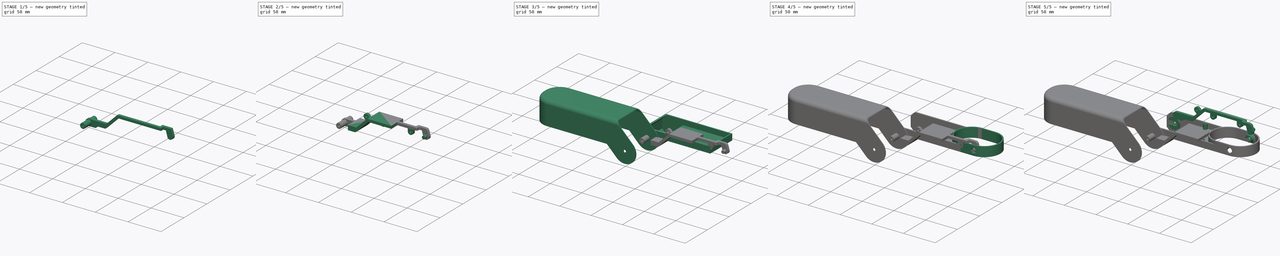
[diagram: build sequence overview — one tinted view per stage of 5, left to right]
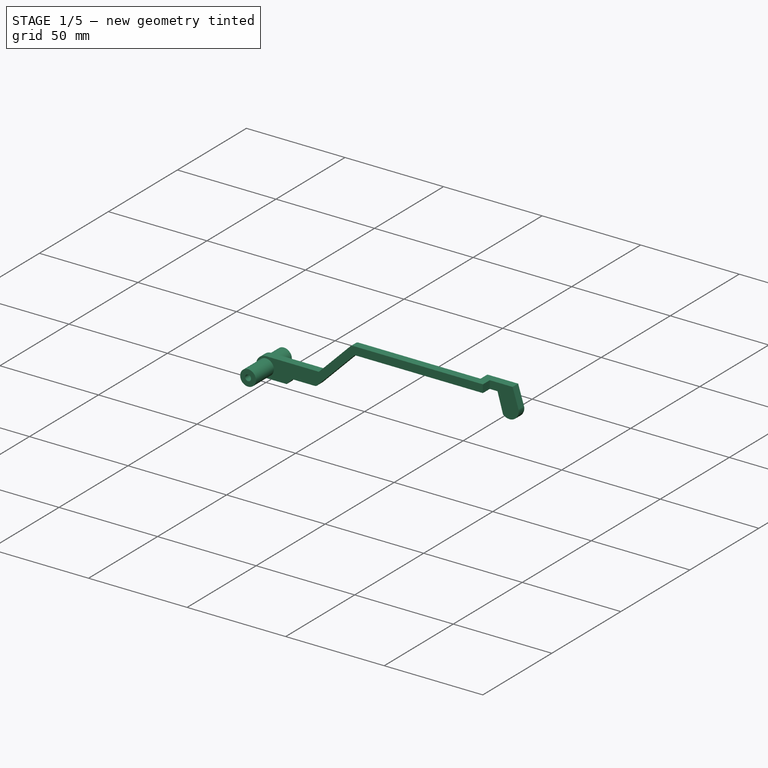
[diagram: stage 1 of 5 — iso view after this stage's code; geometry added in this stage tinted green]
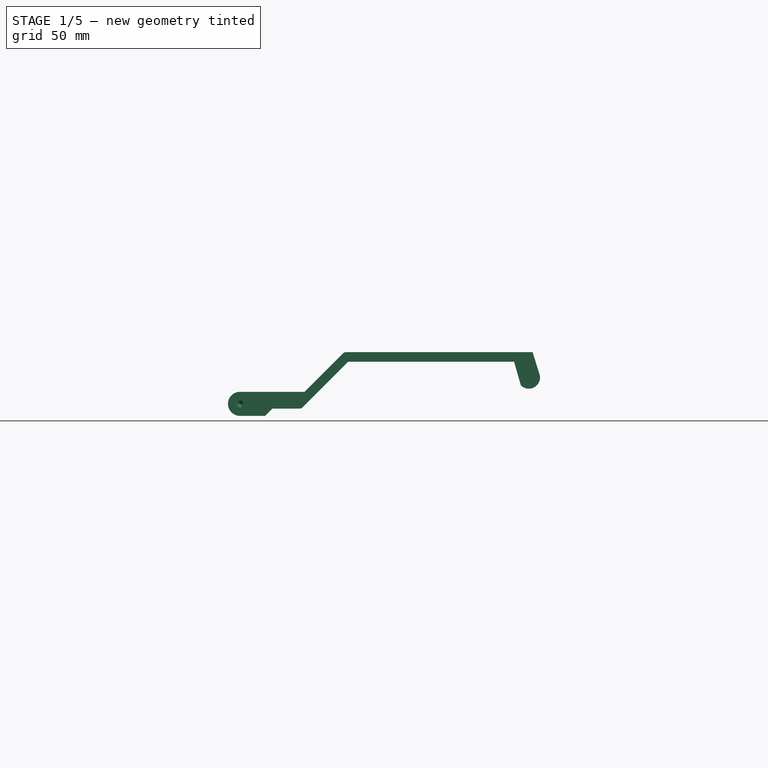
[diagram: stage 1 of 5 — front view after this stage's code; geometry added in this stage tinted green]
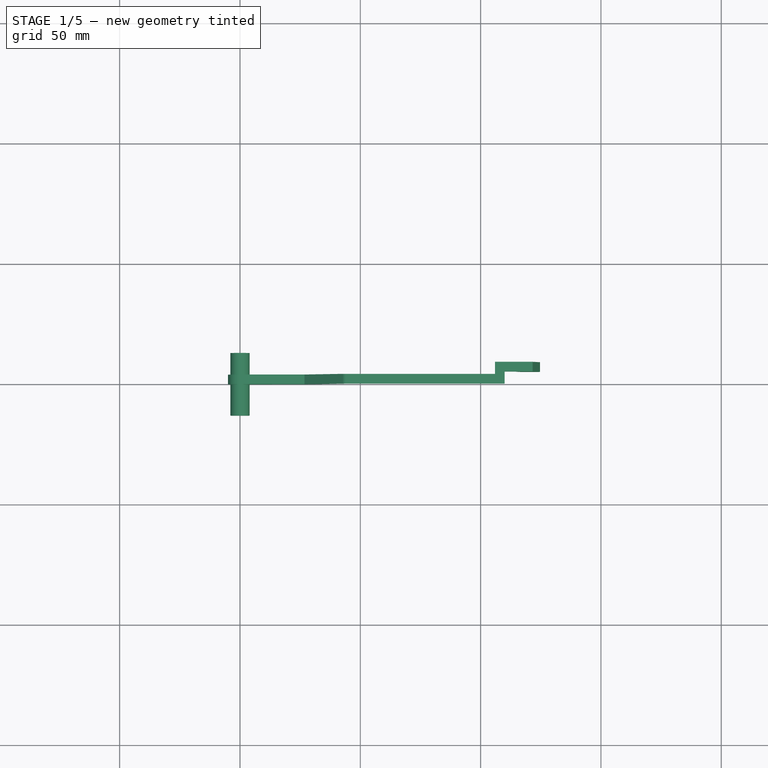
[diagram: stage 1 of 5 — top view after this stage's code; geometry added in this stage tinted green]
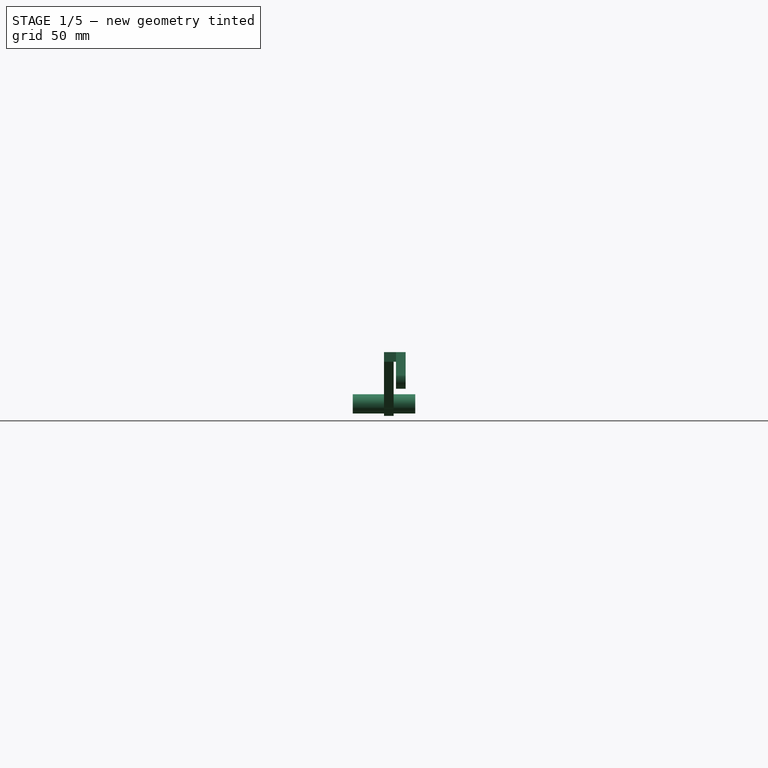
[diagram: stage 1 of 5 — right view after this stage's code; geometry added in this stage tinted green]
FCSTD DOCUMENT  (FreeCAD 1.0R39319 (Git))
Label: ThirdArmUpDown
License: All rights reserved
LicenseURL: https://en.wikipedia.org/wiki/All_rights_reserved
objects: Sketcher::SketchObject×27, PartDesign::Pad×16, PartDesign::Pocket×9, PartDesign::Fillet×7, App::Link×6, PartDesign::Body×6, PartDesign::Mirrored×2, PartDesign::Thickness×1, PartDesign::LinearPattern×1, Spreadsheet::Sheet×1, Part::Mirroring×1, PartDesign::Hole×1, App::LinkGroup×1
note: 169 computed .brp shape members not serialized (recipe doc carries the construction recipe); baked Part::Feature solids carry a one-line shape summary decoded from their .brp
EXTERNAL_REF file=Robot.FCStd obj=Spreadsheet
EXTERNAL_REF file=ThirdArm.FCStd obj=LinkGroup
EXTERNAL_REF file=GripperHolder.FCStd obj=LinkGroup

FEATURE [Sketcher::SketchObject] Sketch033
  ArcFitTolerance = 1e-06
  AttachmentSupport = -> [XZ_Plane004]
  FullyConstrained = false
  MakeInternals = false
  MapMode = 5
  Placement = pos=(0,0,0) rot=(1,0,0;1.5708rad)
  expr: Constraints[22] = <<Spreadsheet>>.ThirdArmLength + 10
  sketch-geometry (10):
    g0: LineSegment StartX=44.946 StartY=17.5 StartZ=0 EndX=110 EndY=17.5 EndZ=0
    g1: LineSegment StartX=26.0318 StartY=-1.41421 StartZ=0 EndX=44.946 EndY=17.5 EndZ=0
    g2: ArcOfCircle CenterX=24.6176 CenterY=0 CenterZ=0 NormalX=0 NormalY=0 NormalZ=-1 AngleXU=2.35619 Radius=2 StartAngle=1.5708 EndAngle=2.35619
    g3: LineSegment StartX=3e-16 StartY=-2 StartZ=0 EndX=24.6176 EndY=-2 EndZ=0
    g4: ArcOfCircle CenterX=0 CenterY=0 CenterZ=0 NormalX=0 NormalY=0 NormalZ=-1 AngleXU=-3.14159 Radius=2 StartAngle=1.5708 EndAngle=4.71239
    g5: LineSegment StartX=-1e-16 StartY=2 StartZ=0 EndX=23.7891 EndY=2 EndZ=0
    g6: LineSegment StartX=23.7891 StartY=2 StartZ=0 EndX=42.6541 EndY=20.865 EndZ=0
    g7: ArcOfCircle CenterX=44.1872 CenterY=19.3319 CenterZ=0 NormalX=0 NormalY=0 NormalZ=-1 AngleXU=-0.785398 Radius=2.16811 StartAngle=1.5708 EndAngle=2.35619
    g8: LineSegment StartX=44.1872 StartY=21.5 StartZ=0 EndX=110 EndY=21.5 EndZ=0
    g9: LineSegment StartX=110 StartY=21.5 StartZ=0 EndX=110 EndY=17.5 EndZ=0
  constraints (24):
    c: Coincident(g0,g1)
    c: Tangent(g1,g2) = -1.5708
    c: Tangent(g2,g3) = -1.5708
    c: Tangent(g3,g4) = -1.5708
    c: Tangent(g4,g5) = 1.5708
    c: Coincident(g5,g6)
    c: Tangent(g6,g7) = 1.5708
    c: Tangent(g7,g8) = 1.5708
    c: Horizontal(g0)
    c: Horizontal(g8)
    c: Horizontal(g5)
    c: Horizontal(g3)
    c: Angle(g-1,g1) = 0.785398
    c: Angle(g-1,g6) = 0.785398
    c: Distance(g0,g8) = 4
    c: Distance(g1,g6) = 4
    c: Distance(g3,g5) = 4
    c: Horizontal(g2,g4)
    c: Coincident(g4,g-1)
    c: Coincident(g9,g8)
    c: Coincident(g9,g0)
    c: Vertical(g9)
    c: Distance(g-2,g9) = 110
    c: Distance(g-1,g0) = 17.5
FEATURE [PartDesign::Pad] Pad018
  Direction = (0,-1,2e-16)
  Length = 4
  Length2 = 10
  Placement = pos=(0,0,0) rot=(1,0,0;1.5708rad)
  Profile = -> Sketch033
  ReferenceAxis = -> Sketch033 [N_Axis]
  Refine = true
  Reversed = true
  Suppressed = false
  Type = 0
FEATURE [Sketcher::SketchObject] Sketch034
  ArcFitTolerance = 1e-06
  AttachmentSupport = -> [Pad018]
  ExternalGeometry = -> [Sketch033]
  FullyConstrained = false
  MakeInternals = false
  MapMode = 5
  Placement = pos=(0,2.9e-15,0) rot=(1,0,0;1.5708rad)
  sketch-geometry (6):
    g0: ArcOfCircle CenterX=0 CenterY=0 CenterZ=0 NormalX=0 NormalY=0 NormalZ=1 AngleXU=0 Radius=5 StartAngle=1.5708 EndAngle=4.71239
    g1: LineSegment StartX=10.46 StartY=-5 StartZ=0 EndX=-2.25511e-08 EndY=-5 EndZ=0
    g2: LineSegment StartX=26.7891 StartY=5 StartZ=0 EndX=-5.64223e-08 EndY=5 EndZ=0
    g3: LineSegment StartX=26.7891 StartY=5 StartZ=0 EndX=26.7891 EndY=-0.656854 EndZ=0
    g4: LineSegment StartX=26.7891 StartY=-0.656854 StartZ=0 EndX=14.8031 EndY=-0.656854 EndZ=0
    g5: LineSegment StartX=14.8031 StartY=-0.656854 StartZ=0 EndX=10.46 EndY=-5 EndZ=0
  constraints (17):
    c: Coincident(g0,g-1)
    c: Diameter(g0) = 10
    c: PointOnObject(g2,g-3)
    c: Horizontal(g2)
    c: Distance(g0,g2) = 5
    c: Coincident(g0,g2)
    c: Coincident(g0,g1)
    c: Horizontal(g1)
    c: Distance(g0,g1) = 5
    c: Coincident(g3,g2)
    c: PointOnObject(g3,g-4)
    c: Vertical(g3)
    c: Coincident(g3,g4)
    c: Horizontal(g4)
    c: Coincident(g4,g5)
    c: Coincident(g5,g1)
    c: Angle(g5,g1) = 2.35619
FEATURE [PartDesign::Pad] Pad019
  BaseFeature = -> Pad018
  Direction = (0,-1,2e-16)
  Length = 4
  Length2 = 10
  Placement = pos=(0,0,0) rot=(1,0,0;1.5708rad)
  Profile = -> Sketch034
  ReferenceAxis = -> Sketch034 [N_Axis]
  Refine = true
  Reversed = true
  Suppressed = false
  Type = 0
FEATURE [Sketcher::SketchObject] Sketch035
  ArcFitTolerance = 1e-06
  AttachmentSupport = -> [Pad019]
  FullyConstrained = true
  MakeInternals = false
  MapMode = 5
  Placement = pos=(0,1.3e-15,0) rot=(1,0,0;1.5708rad)
  sketch-geometry (1):
    g0: Circle CenterX=0 CenterY=0 CenterZ=0 NormalX=0 NormalY=0 NormalZ=1 AngleXU=0 Radius=2.5
  constraints (2):
    c: Coincident(g0,g-1)
    c: Diameter(g0) = 5
FEATURE [PartDesign::Pad] Pad020
  BaseFeature = -> Pad019
  Direction = (0,-1,2e-16)
  Length = 4
  Length2 = 10
  Placement = pos=(0,0,0) rot=(1,0,0;1.5708rad)
  Profile = -> Sketch035
  ReferenceAxis = -> Sketch035 [N_Axis]
  Refine = true
  Suppressed = false
  Type = 0
FEATURE [Sketcher::SketchObject] Sketch036
  ArcFitTolerance = 1e-06
  AttachmentSupport = -> [Pad020]
  FullyConstrained = false
  MakeInternals = false
  MapMode = 5
  Placement = pos=(0,9.5e-15,21.5) rot=(0,0,1;3.14159rad)
  expr: Constraints[15] = <<Spreadsheet>>.ThirdArmLength + 10
  sketch-geometry (6):
    g0: LineSegment StartX=-110 StartY=0 StartZ=0 EndX=-106 EndY=0 EndZ=0
    g1: LineSegment StartX=-106 StartY=0 StartZ=0 EndX=-106 EndY=-9 EndZ=0
    g2: LineSegment StartX=-106 StartY=-9 StartZ=0 EndX=-121.594 EndY=-9 EndZ=0
    g3: LineSegment StartX=-121.594 StartY=-9 StartZ=0 EndX=-121.594 EndY=-5 EndZ=0
    g4: LineSegment StartX=-121.594 StartY=-5 StartZ=0 EndX=-110 EndY=-5 EndZ=0
    g5: LineSegment StartX=-110 StartY=-5 StartZ=0 EndX=-110 EndY=0 EndZ=0
  constraints (17):
    c: PointOnObject(g0,g-1)
    c: PointOnObject(g0,g-1)
    c: Coincident(g0,g1)
    c: Vertical(g1)
    c: Coincident(g1,g2)
    c: Horizontal(g2)
    c: Coincident(g2,g3)
    c: Vertical(g3)
    c: Coincident(g3,g4)
    c: Horizontal(g4)
    c: Coincident(g4,g5)
    c: Coincident(g5,g0)
    c: Vertical(g5)
    c: Distance(g2,g4) = 4
    c: Distance(g-1,g4) = 5
    c: Distance(g-2,g5) = 110
    c: Distance(g1,g5) = 4
FEATURE [PartDesign::Pad] Pad021
  BaseFeature = -> Pad020
  Direction = (0,0,1)
  Length = 4
  Length2 = 10
  Placement = pos=(0,0,0) rot=(1,0,0;1.5708rad)
  Profile = -> Sketch036
  ReferenceAxis = -> Sketch036 [N_Axis]
  Refine = true
  Reversed = true
  Suppressed = false
  Type = 0
FEATURE [Sketcher::SketchObject] Sketch037
  ArcFitTolerance = 1e-06
  AttachmentSupport = -> [Pad021]
  ExternalGeometry = -> [Pad021]
  FullyConstrained = false
  MakeInternals = false
  MapMode = 5
  Placement = pos=(0,9,-2e-15) rot=(-1,0,0;1.5708rad)
  expr: Constraints[7] = <<Spreadsheet>>.ThirdArmLength + 20
  sketch-geometry (4):
    g0: LineSegment StartX=121.594 StartY=-21.5 StartZ=0 EndX=112.785 EndY=-21.5 EndZ=0
    g1: LineSegment StartX=112.785 StartY=-21.5 StartZ=0 EndX=116.731 EndY=-7.62382 EndZ=0
    g2: LineSegment StartX=124.632 StartY=-11.7967 StartZ=0 EndX=121.594 EndY=-21.5 EndZ=0
    g3: ArcOfCircle CenterX=120 CenterY=-11 CenterZ=0 NormalX=0 NormalY=0 NormalZ=1 AngleXU=0 Radius=4.69961 StartAngle=6.11283 EndAngle=8.62328
  constraints (8):
    c: Coincident(g-3,g0)
    c: PointOnObject(g0,g-3)
    c: Coincident(g0,g1)
    c: Coincident(g2,g0)
    c: Coincident(g2,g3)
    c: Coincident(g1,g3)
    c: Distance(g3,g-1) = 11
    c: DistanceX(g-1,g3) = 120
FEATURE [PartDesign::Pad] Pad022
  BaseFeature = -> Pad021
  Direction = (0,1,2e-16)
  Length = 4
  Length2 = 10
  Placement = pos=(0,0,0) rot=(1,0,0;1.5708rad)
  Profile = -> Sketch037
  ReferenceAxis = -> Sketch037 [N_Axis]
  Refine = true
  Reversed = true
  Suppressed = false
  Type = 0
FEATURE [Sketcher::SketchObject] Sketch050
  ArcFitTolerance = 1e-06
  AttachmentSupport = -> [XZ_Plane007]
  FullyConstrained = true
  MakeInternals = false
  MapMode = 5
  Placement = pos=(0,0,0) rot=(1,0,0;1.5708rad)
  sketch-geometry (1):
    g0: Circle CenterX=0 CenterY=0 CenterZ=0 NormalX=0 NormalY=0 NormalZ=1 AngleXU=0 Radius=4
  constraints (2):
    c: Diameter(g0) = 8
    c: Coincident(g0,g-1)
FEATURE [PartDesign::Pad] Pad029
  Direction = (0,-1,2e-16)
  Length = 26
  Length2 = 10
  Midplane = true
  Placement = pos=(0,0,0) rot=(1,0,0;1.5708rad)
  Profile = -> Sketch050
  ReferenceAxis = -> Sketch050 [N_Axis]
  Refine = true
  Suppressed = false
  Type = 0
FEATURE [Sketcher::SketchObject] Sketch051
  ArcFitTolerance = 1e-06
  AttachmentSupport = -> [Pad029]
  FullyConstrained = true
  MakeInternals = false
  MapMode = 5
  Placement = pos=(0,-13,0) rot=(1,0,0;1.5708rad)
  sketch-geometry (1):
    g0: Circle CenterX=0 CenterY=0 CenterZ=0 NormalX=0 NormalY=0 NormalZ=1 AngleXU=0 Radius=1.5
  constraints (2):
    c: Diameter(g0) = 3
    c: Coincident(g0,g-1)
FEATURE [PartDesign::Hole] Hole
  BaseFeature = -> Pad029
  CustomThreadClearance = 0
  Depth = 5
  DepthType = 0
  Diameter = 3
  DrillForDepth = false
  DrillPoint = 1
  DrillPointAngle = 118
  HoleCutCountersinkAngle = 90
  HoleCutCustomValues = false
  HoleCutDepth = 0
  HoleCutDiameter = 6.1
  HoleCutType = 0
  ModelThread = false
  Placement = pos=(0,0,0) rot=(1,0,0;1.5708rad)
  Profile = -> Sketch051
  Refine = true
  Suppressed = false
  Tapered = false
  TaperedAngle = 90
  ThreadClass = 0
  ThreadDepth = 5
  ThreadDepthType = 0
  ThreadDirection = 0
  ThreadFit = 0
  ThreadSize = 0
  ThreadType = 0
  Threaded = false
  UseCustomThreadClearance = false
FEATURE [PartDesign::Mirrored] Mirrored001
  BaseFeature = -> Hole
  MirrorPlane = -> XZ_Plane007
  Originals = -> [Hole]
  Placement = pos=(0,0,0) rot=(1,0,0;1.5708rad)
  Refine = true
  Suppressed = false
  TransformMode = 0
FEATURE [PartDesign::Body] Body007  label="DragShaftBridge"
  AllowCompound = false
  Group = -> [Sketch050,Pad029,Sketch051,Hole,Mirrored001]
  Origin = -> Origin007
  Placement = pos=(32.7,25,29.5) rot=(0,0,1;0rad)
  Tip = -> Mirrored001
FEATURE [App::Link] Link006  label="DragShaftBridge001"
  LinkPlacement = pos=(58,25,26.5) rot=(0,0,1;0rad)
  LinkedObject = -> Body007
  Placement = pos=(58,25,26.5) rot=(0,0,1;0rad)
FEATURE [App::Link] Link007  label="DragShaftBridge002"
  LinkPlacement = pos=(100,25.1,26.5) rot=(0,0,1;0rad)
  LinkedObject = -> Link006
  Placement = pos=(100,25.1,26.5) rot=(0,0,1;0rad)
FEATURE [App::LinkGroup] LinkGroup  label="ThirdArmUpdown"
  ElementList = -> [Body003,Body,Part__Mirroring,Body004,Link004,Link,Body007,Link006,Link007]
  LinkMode = 0
  Placement = pos=(0,-5.72205e-06,0) rot=(0,0,1;0rad)

RESOLVED EXTERNAL PARTS (link-assembly join: the EXTERNAL_REF files above that resolve inside this repo's crawl, each included once):
---- part GripperHolder.FCStd = doc fcstd_b5bc345b6ee7 (67873 chars; too large to inline — full recipe in that document) ----
---- part Robot.FCStd = doc fcstd_74aedbbb681d ----
FCSTD DOCUMENT  (FreeCAD 1.0R39319 (Git))
Label: Robot
License: All rights reserved
LicenseURL: https://en.wikipedia.org/wiki/All_rights_reserved
objects: App::Link×5, Spreadsheet::Sheet×1, Sketcher::SketchObject×1, PartDesign::Body×1
note: 3 computed .brp shape members not serialized (recipe doc carries the construction recipe); baked Part::Feature solids carry a one-line shape summary decoded from their .brp
EXTERNAL_REF file=DisplayHolder.FCStd obj=LinkGroup
EXTERNAL_REF file=RobotBody.FCStd obj=Body002
EXTERNAL_REF file=GT2_80.FCStd obj=LinkGroup
EXTERNAL_REF file=RobotBody.FCStd obj=LinkGroup
EXTERNAL_REF file=ChessBoard.FCStd obj=LinkGroup

FEATURE [Spreadsheet::Sheet] Spreadsheet  label="SpreadSheet"
  cells = A1='BaseWidth; B1(BaseWidth)=64; D1='TopThickness; E1(TopThickness)=2; G1='TeethNum; H1(TeethNum)=64; A2='BaseRectWidth; B2(BaseRectWidth)=40; D2='TopBearingHeight; E2(TopBearingHeight)=8; G2='CenterGearShaft; H2(CenterGearShaft)=0; A3='BaseRectHeight; B3(BaseRectHeight)=28; D3='TopBearingHole; E3(TopBearingHole)=25; G3='CutAngle; H3(CutAngle)=45; A4='HoleDiamter; B4(HoleDiamter)=28; D4='TopBearingDiameter; E4(TopBearingDiameter)=37; G4='ShaftDiameter; H4(ShaftDiameter)=6; A5='ScrewHoleDiamter; B5(ScrewHoleDiamter)=4.5; D5='TopThrustBearingHeight; E5(TopThrustBearingHeight)=4; G5='ShaftLength; H5(ShaftLength)=20; A6='CenterToScrewHole; B6(CenterToScrewHole)=24.5; D6='TopThrustBearingDiameter; E6(TopThrustBearingDiameter)=47; A7='Width; B7(Width)=120; D7='TopDiameter; E7(TopDiameter)=64; G7='GripperVerticalThread; H7(GripperVerticalThread)=5; A8='Length; B8(Length)=150; D8='TopFaceWidth; E8(TopFaceWidth)=50; G8='GripperVerticalBolt; H8(GripperVerticalBolt)=8; A9='Height; B9(Height)=70; D9='TopFaceSize; E9(TopFaceSize)=200; G9='GripperCenterToFork; H9(GripperCenterToFork)=10; A10='FirstLayerDepth; B10(FirstLayerDepth)=12; D10='SecondArmHeight; E10(SecondArmHeight)=37; G10='GripperForkDiameter; H10(GripperForkDiameter)=2; A11='UpperThickness; B11(UpperThickness)=5; D11='TopFaceHeight; E11(TopFaceHeight)=42; A12='UpperHeight; B12(UpperHeight)=80; D12='TopGearHoleDiameter; E12(TopGearHoleDiameter)=54; A13='StepperCenterToScewHole; B13(StepperCenterToScewHole)=15.5; D13='SecondShaftStepperHolderHeight; E13(SecondShaftStepperHolderHeight)=5; A14='ContactBaseWidth; B14(ContactBaseWidth)=10; D14='CenterToStepper; E14(CenterToStepper)=200; A15='StepperScrewHole; B15(StepperScrewHole)=3; D15='StepperSize; E15(StepperSize)=42; A16='MainShaftScrewBase; B16(MainShaftScrewBase)=11; D16='StepperHeight; E16(StepperHeight)=20; A17='MainShaftSize; B17(MainShaftSize)=60; D17='StepperMainHole; E17(StepperMainHole)=22; A18='MainShaftHolder; B18(MainShaftHolder)=23; D18='StepperCenterToScrew; E18(StepperCenterToScrew)=15.5; A19='MainShaftScrewDepth; B19(MainShaftScrewDepth)=5; D19='CuroaHoleSize; E19(CuroaHoleSize)=40; D20='ConnectMainArmHoleSpace; E20(ConnectMainArmHoleSpace)=5; A21='ContactHeight; B21(ContactHeight)=5; D21='SecondShaftScrewHole; E21(SecondShaftScrewHole)=4; A22='FirstArmHeight; B22(FirstArmHeight)=40; D22='SecondShaftThroughHole; E22(SecondShaftThroughHole)=8; A23='FirstArmInnerDiameter; B23(FirstArmInnerDiameter)=28; D23='BottomBearingInnerDiameter; E23(BottomBearingInnerDiameter)=40; A24='FirstArmInnerSpaceDiameter; B24(FirstArmInnerSpaceDiameter)=45; D24='BottomBearingOuterDiameter; E24(BottomBearingOuterDiameter)=52; A25='OuterDiameter; B25(OuterDiameter)=90; D25='BottomBearingHeight; E25(BottomBearingHeight)=7; A26='ContactArmWith; B26(ContactArmWith)=54; A27='ContactArmLength; B27(ContactArmLength)=15; A29='UpperBearingHole; B29(UpperBearingHole)=8; A30='UpperBearingInner; B30(UpperBearingInner)=6; A31='UpperBearingInnerDepth; B31(UpperBearingInnerDepth)=1; A32='UpperBearingOuter; B32(UpperBearingOuter)=8.1; A33='UpperBearingOuterDepth; B33(UpperBearingOuterDepth)=4; A34='LowerBearingHole; B34(LowerBearingHole)=10; A35='LowerBearingInner; B35(LowerBearingInner)=13.1; A36='LowerBearingInnerDepth; B36(LowerBearingInnerDepth)=1; A37='LowerBearingOuter; B37(LowerBearingOuter)=15.1; A38='LowerBearingOuterDepth; B38(LowerBearingOuterDepth)=4; A39='CenterSpace; B39(CenterSpace)=31; A40='UpperLowerSpace; B40(UpperLowerSpace)=13; A41='FirstToSecondHoleSpace; B41(FirstToSecondHoleSpace)=13; A42='GripperLowerBearingHole; B42(GripperLowerBearingHole)=8.1; A43='GripperUpperBearingHole; B43(GripperUpperBearingHole)=8.1; A44='GripperThickness; B44(GripperThickness)=1; A45='GripperLowerHoleDiameter; B45(GripperLowerHoleDiameter)=5; A46='GripperWidth; B46(GripperWidth)=44; A47='ThirdArmWidth; B47(ThirdArmWidth)=50; A48='ThirdArmLength; B48(ThirdArmLength)=100
FEATURE [App::Link] Link010  label="DisplayGroup"
  LinkPlacement = pos=(-57.6,-1.23143e-05,160.9) rot=(0,0,1;0rad)
  LinkedObject = -> <external DisplayHolder.FCStd>#LinkGroup
  Placement = pos=(-57.6,-1.23143e-05,160.9) rot=(0,0,1;0rad)
FEATURE [App::Link] Link011  label="BodyHolder001"
  LinkedObject = -> <external RobotBody.FCStd>#Body002
FEATURE [App::Link] Link012  label="SecondShaft"
  LinkPlacement = pos=(224.007,129.319,49) rot=(0,0,1;3.66519rad)
  LinkedObject = -> <external GT2_80.FCStd>#LinkGroup
  Placement = pos=(224.007,129.319,49) rot=(0,0,1;3.66519rad)
FEATURE [App::Link] Link013  label="RobotBody"
  LinkedObject = -> <external RobotBody.FCStd>#LinkGroup
FEATURE [App::Link] Link014  label="WoodenChessBoard"
  LinkPlacement = pos=(-58,223.8,-82.5) rot=(0,0,1;3.14159rad)
  LinkedObject = -> <external ChessBoard.FCStd>#LinkGroup
  Placement = pos=(-58,223.8,-82.5) rot=(0,0,1;3.14159rad)
FEATURE [Sketcher::SketchObject] Sketch
  ArcFitTolerance = 1e-06
  AttachmentSupport = -> [XY_Plane]
  FullyConstrained = true
  MakeInternals = false
  MapMode = 5
  sketch-geometry (2):
    g0: LineSegment StartX=0 StartY=0 StartZ=0 EndX=0 EndY=38.08 EndZ=0
    g1: LineSegment StartX=0 StartY=38.08 StartZ=0 EndX=-74.12 EndY=38.08 EndZ=0
  constraints (6):
    c: Coincident(g0,g-1)
    c: PointOnObject(g0,g-2)
    c: Coincident(g1,g0)
    c: Horizontal(g1)
    c: DistanceX(g1,g1) = 74.12
    c: DistanceY(g0,g0) = 38.08
FEATURE [PartDesign::Body] Body
  AllowCompound = false
  Group = -> [Sketch]
  Origin = -> Origin
  Placement = pos=(-0.1,-0.1,0) rot=(0,0,1;4.71239rad)
---- part ThirdArm.FCStd = doc fcstd_a92099881b3e (85140 chars; too large to inline — full recipe in that document) ----
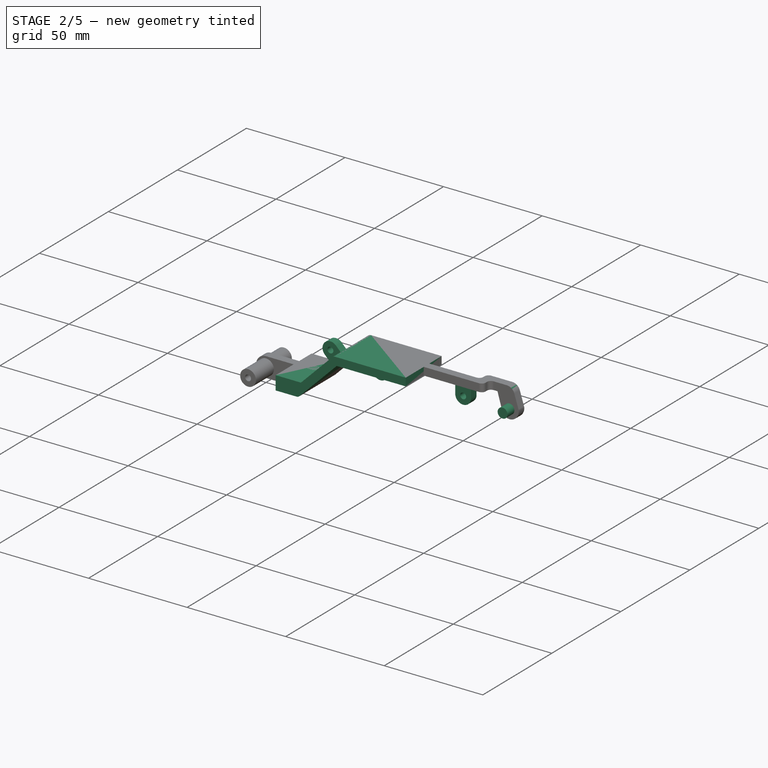
[diagram: stage 2 of 5 — iso view after this stage's code; geometry added in this stage tinted green]
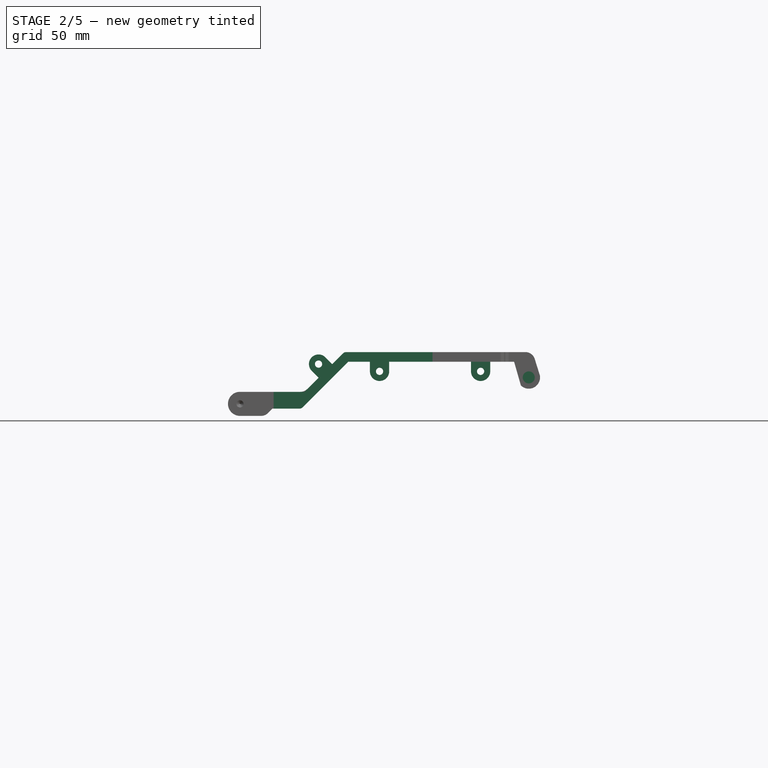
[diagram: stage 2 of 5 — front view after this stage's code; geometry added in this stage tinted green]
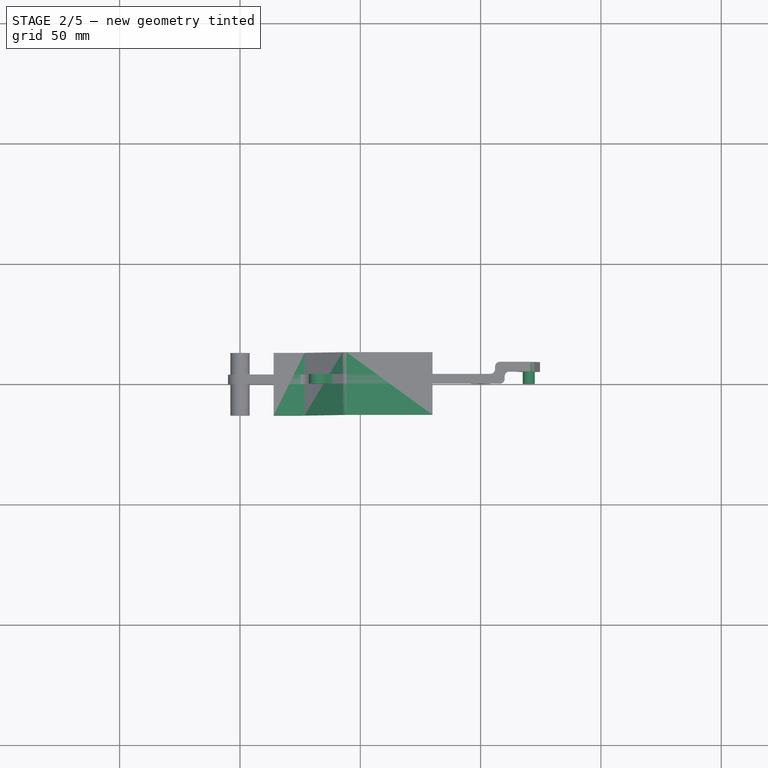
[diagram: stage 2 of 5 — top view after this stage's code; geometry added in this stage tinted green]
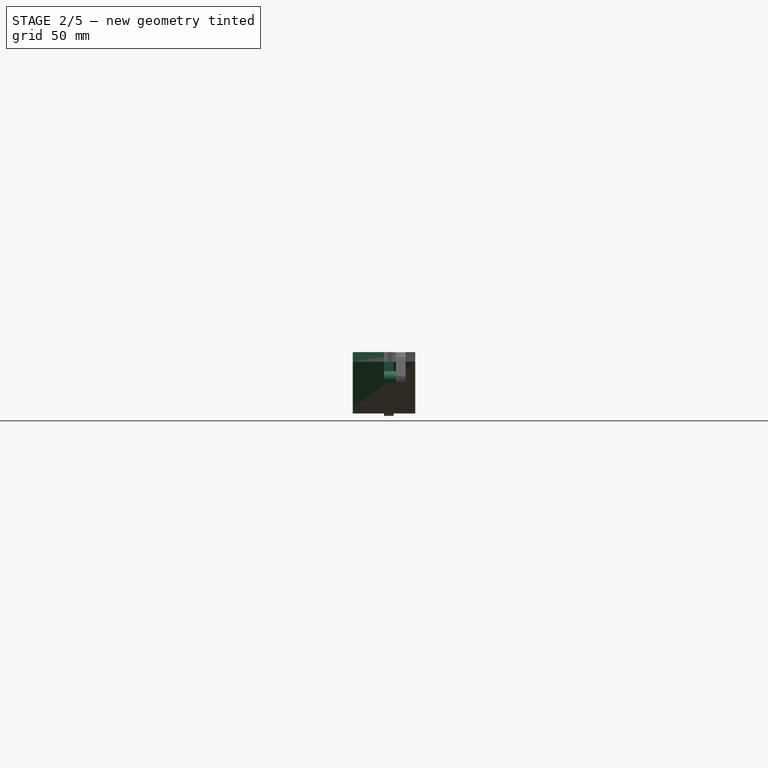
[diagram: stage 2 of 5 — right view after this stage's code; geometry added in this stage tinted green]
FEATURE [Sketcher::SketchObject] Sketch038
  ArcFitTolerance = 1e-06
  AttachmentSupport = -> [Pad022]
  FullyConstrained = true
  MakeInternals = false
  MapMode = 5
  Placement = pos=(1.4e-15,5,-1.7e-15) rot=(1,0,0;1.5708rad)
  expr: Constraints[2] = <<Spreadsheet>>.ThirdArmLength + 20
  sketch-geometry (1):
    g0: Circle CenterX=120 CenterY=11 CenterZ=0 NormalX=0 NormalY=0 NormalZ=1 AngleXU=0 Radius=2.5
  constraints (3):
    c: Diameter(g0) = 5
    c: DistanceY(g-1,g0) = 11
    c: DistanceX(g-1,g0) = 120
FEATURE [PartDesign::Pad] Pad023
  BaseFeature = -> Pad022
  Direction = (0,-1,2e-16)
  Length = 5
  Length2 = 10
  Placement = pos=(0,0,0) rot=(1,0,0;1.5708rad)
  Profile = -> Sketch038
  ReferenceAxis = -> Sketch038 [N_Axis]
  Refine = true
  Suppressed = false
  Type = 0
FEATURE [PartDesign::Fillet] Fillet
  Base = -> Pad023 [Edge45,Edge21]
  BaseFeature = -> Pad023
  Placement = pos=(0,0,0) rot=(1,0,0;1.5708rad)
  Radius = 2
  Refine = true
  SupportTransform = false
  Suppressed = false
  UseAllEdges = false
FEATURE [PartDesign::Fillet] Fillet001
  Base = -> Fillet [Edge29,Edge28]
  BaseFeature = -> Fillet
  Placement = pos=(0,0,0) rot=(1,0,0;1.5708rad)
  Radius = 2
  Refine = true
  SupportTransform = false
  Suppressed = false
  UseAllEdges = false
FEATURE [PartDesign::Fillet] Fillet002
  Base = -> Fillet001 [Edge59]
  BaseFeature = -> Fillet001
  Placement = pos=(0,0,0) rot=(1,0,0;1.5708rad)
  Radius = 4
  Refine = true
  SupportTransform = false
  Suppressed = false
  UseAllEdges = false
FEATURE [PartDesign::Fillet] Fillet003
  Base = -> Fillet002 [Edge70,Edge71]
  BaseFeature = -> Fillet002
  Placement = pos=(0,0,0) rot=(1,0,0;1.5708rad)
  Radius = 4
  Refine = true
  SupportTransform = false
  Suppressed = false
  UseAllEdges = false
FEATURE [PartDesign::Body] Body003  label="UpdownCoverV2"
  AllowCompound = false
  Group = -> [Sketch025,Pad015,Sketch026,Pocket009,Sketch045,Pad026,LinearPattern,Fillet005,Fillet006]
  Origin = -> Origin003
  Placement = pos=(-1e-16,-1,-2e-16) rot=(0,0,1;3.14159rad)
  Tip = -> Fillet006
FEATURE [Sketcher::SketchObject] Sketch046
  ArcFitTolerance = 1e-06
  AttachmentSupport = -> [XY_Plane005]
  FullyConstrained = false
  MakeInternals = false
  MapMode = 5
  sketch-geometry (3):
    g0: LineSegment StartX=-90.647 StartY=92.7181 StartZ=0 EndX=-90.647 EndY=72.373 EndZ=0
    g1: LineSegment StartX=-90.647 StartY=72.373 StartZ=0 EndX=-51.8753 EndY=24.7758 EndZ=0
    g2: LineSegment StartX=-51.8753 StartY=24.7758 StartZ=0 EndX=126.615 EndY=24.7758 EndZ=0
  constraints (6):
    c: Vertical(g0)
    c: Coincident(g0,g1)
    c: Coincident(g1,g2)
    c: Horizontal(g2)
    c: DistanceX(g2,g2) = 178.49
    c: Distance(g1,g1) = 61.39
FEATURE [PartDesign::Body] Body005  label="Body"
  AllowCompound = false
  Group = -> [Sketch046]
  Origin = -> Origin005
  Placement = pos=(0,0,34.4) rot=(0,0,1;0rad)
FEATURE [Spreadsheet::Sheet] Spreadsheet  label="SpreadSheet"
  cells = A1='BaseWidth; B1(BaseWidth)=64; D1='TopThickness; E1(TopThickness)=2; G1='TeethNum; H1(TeethNum)=64; A2='BaseRectWidth; B2(BaseRectWidth)=40; D2='TopBearingHeight; E2(TopBearingHeight)=8; G2='CenterGearShaft; H2(CenterGearShaft)=0; A3='BaseRectHeight; B3(BaseRectHeight)=28; D3='TopBearingHole; E3(TopBearingHole)=25; G3='CutAngle; H3(CutAngle)=45; A4='HoleDiamter; B4(HoleDiamter)=28; D4='TopBearingDiameter; E4(TopBearingDiameter)=37; G4='ShaftDiameter; H4(ShaftDiameter)=6; A5='ScrewHoleDiamter; B5(ScrewHoleDiamter)=4.5; D5='TopThrustBearingHeight; E5(TopThrustBearingHeight)=4; G5='ShaftLength; H5(ShaftLength)=20; A6='CenterToScrewHole; B6(CenterToScrewHole)=24.5; D6='TopThrustBearingDiameter; E6(TopThrustBearingDiameter)=47; A7='Width; B7(Width)=120; D7='TopDiameter; E7(TopDiameter)=64; G7='GripperVerticalThread; H7(GripperVerticalThread)=5; A8='Length; B8(Length)=150; D8='TopFaceWidth; E8(TopFaceWidth)=50; G8='GripperVerticalBolt; H8(GripperVerticalBolt)=8; A9='Height; B9(Height)=70; D9='TopFaceSize; E9(TopFaceSize)=200; G9='GripperCenterToFork; H9(GripperCenterToFork)=10; A10='FirstLayerDepth; B10(FirstLayerDepth)=12; D10='SecondArmHeight; E10(SecondArmHeight)=37; G10='GripperForkDiameter; H10(GripperForkDiameter)=2; A11='UpperThickness; B11(UpperThickness)=5; D11='TopFaceHeight; E11(TopFaceHeight)=42; A12='UpperHeight; B12(UpperHeight)=80; D12='TopGearHoleDiameter; E12(TopGearHoleDiameter)=54; A13='StepperCenterToScewHole; B13(StepperCenterToScewHole)=15.5; D13='SecondShaftStepperHolderHeight; E13(SecondShaftStepperHolderHeight)=5; A14='ContactBaseWidth; B14(ContactBaseWidth)=10; D14='CenterToStepper; E14(CenterToStepper)=200; A15='StepperScrewHole; B15(StepperScrewHole)=3; D15='StepperSize; E15(StepperSize)=42; A16='MainShaftScrewBase; B16(MainShaftScrewBase)=11; D16='StepperHeight; E16(StepperHeight)=20; A17='MainShaftSize; B17(MainShaftSize)=60; D17='StepperMainHole; E17(StepperMainHole)=22; A18='MainShaftHolder; B18(MainShaftHolder)=23; D18='StepperCenterToScrew; E18(StepperCenterToScrew)=15.5; A19='MainShaftScrewDepth; B19(MainShaftScrewDepth)=5; D19='CuroaHoleSize; E19(CuroaHoleSize)=40; D20='ConnectMainArmHoleSpace; E20(ConnectMainArmHoleSpace)=5; A21='ContactHeight; B21(ContactHeight)=5; D21='SecondShaftScrewHole; E21(SecondShaftScrewHole)=4; A22='FirstArmHeight; B22(FirstArmHeight)=40; D22='SecondShaftThroughHole; E22(SecondShaftThroughHole)=8; A23='FirstArmInnerDiameter; B23(FirstArmInnerDiameter)=28; D23='BottomBearingInnerDiameter; E23(BottomBearingInnerDiameter)=40; A24='FirstArmInnerSpaceDiameter; B24(FirstArmInnerSpaceDiameter)=45; D24='BottomBearingOuterDiameter; E24(BottomBearingOuterDiameter)=52; A25='OuterDiameter; B25(OuterDiameter)=90; D25='BottomBearingHeight; E25(BottomBearingHeight)=7; A26='ContactArmWith; B26(ContactArmWith)=54; A27='ContactArmLength; B27(ContactArmLength)=15; A29='UpperBearingHole; B29(UpperBearingHole)=8; A30='UpperBearingInner; B30(UpperBearingInner)=6; A31='UpperBearingInnerDepth; B31(UpperBearingInnerDepth)=1; A32='UpperBearingOuter; B32(UpperBearingOuter)=8.1; A33='UpperBearingOuterDepth; B33(UpperBearingOuterDepth)=4; A34='LowerBearingHole; B34(LowerBearingHole)=10; A35='LowerBearingInner; B35(LowerBearingInner)=13.1; A36='LowerBearingInnerDepth; B36(LowerBearingInnerDepth)=1; A37='LowerBearingOuter; B37(LowerBearingOuter)=15.1; A38='LowerBearingOuterDepth; B38(LowerBearingOuterDepth)=4; A39='CenterSpace; B39(CenterSpace)=31; A40='UpperLowerSpace; B40(UpperLowerSpace)=13; A41='FirstToSecondHoleSpace; B41(FirstToSecondHoleSpace)=13; A42='GripperLowerBearingHole; B42(GripperLowerBearingHole)=8.1; A43='GripperUpperBearingHole; B43(GripperUpperBearingHole)=8.1; A44='GripperThickness; B44(GripperThickness)=1; A45='GripperLowerHoleDiameter; B45(GripperLowerHoleDiameter)=5; A46='GripperWidth; B46(GripperWidth)=44; A47='ThirdArmWidth; B47(ThirdArmWidth)=50; A48='ThirdArmLength; B48(ThirdArmLength)=100
FEATURE [App::Link] Link005  label="Spreadsheet001"
  LinkedObject = -> Spreadsheet
FEATURE [Sketcher::SketchObject] Sketch048
  ArcFitTolerance = 1e-06
  AttachmentSupport = -> [XZ_Plane006]
  FullyConstrained = false
  MakeInternals = false
  MapMode = 5
  Placement = pos=(0,0,0) rot=(1,0,0;1.5708rad)
  sketch-geometry (10):
    g0: LineSegment StartX=44.9566 StartY=17.5 StartZ=0 EndX=80 EndY=17.5 EndZ=0
    g1: LineSegment StartX=26.0481 StartY=-1.40845 StartZ=0 EndX=44.9566 EndY=17.5 EndZ=0
    g2: ArcOfCircle CenterX=24.62 CenterY=0.0196834 CenterZ=0 NormalX=0 NormalY=0 NormalZ=-1 AngleXU=2.35619 Radius=2.01968 StartAngle=1.5708 EndAngle=2.35619
    g3: LineSegment StartX=14 StartY=-2 StartZ=0 EndX=24.62 EndY=-2 EndZ=0
    g4: LineSegment StartX=26.7997 StartY=5 StartZ=0 EndX=42.6648 EndY=20.865 EndZ=0
    g5: ArcOfCircle CenterX=44.1977 CenterY=19.3321 CenterZ=0 NormalX=0 NormalY=0 NormalZ=-1 AngleXU=-0.785398 Radius=2.1679 StartAngle=1.5708 EndAngle=2.35619
    g6: LineSegment StartX=44.1977 StartY=21.5 StartZ=0 EndX=80 EndY=21.5 EndZ=0
    g7: LineSegment StartX=80 StartY=21.5 StartZ=0 EndX=80 EndY=17.5 EndZ=0
    g8: LineSegment StartX=14 StartY=-2 StartZ=0 EndX=14 EndY=5 EndZ=0
    g9: LineSegment StartX=14 StartY=5 StartZ=0 EndX=26.7997 EndY=5 EndZ=0
  constraints (26):
    c: Coincident(g0,g1)
    c: Tangent(g1,g2) = -1.5708
    c: Tangent(g2,g3) = -1.5708
    c: Tangent(g4,g5) = 1.5708
    c: Tangent(g5,g6) = 1.5708
    c: Horizontal(g0)
    c: Horizontal(g6)
    c: Horizontal(g3)
    c: Angle(g-1,g1) = 0.785398
    c: Angle(g-1,g4) = 0.785398
    c: Distance(g0,g6) = 4
    c: Distance(g1,g4) = 4
    c: Coincident(g7,g6)
    c: Coincident(g7,g0)
    c: Vertical(g7)
    c: Distance(g-2,g7) = 80
    c: Distance(g-1,g0) = 17.5
    c: Distance(g-1,g3) = 2
    c: DistanceX(g-1,g3) = 14
    c: DistanceX(g-1,g2) = 24.62
    c: Coincident(g3,g8)
    c: Vertical(g8)
    c: Coincident(g8,g9)
    c: Horizontal(g9)
    c: Coincident(g4,g9)
    c: DistanceY(g8,g8) = 7
FEATURE [PartDesign::Pad] Pad027
  Direction = (0,-1,2e-16)
  Length = 26
  Length2 = 10
  Midplane = true
  Placement = pos=(0,0,0) rot=(1,0,0;1.5708rad)
  Profile = -> Sketch048
  ReferenceAxis = -> Sketch048 [N_Axis]
  Refine = true
  Suppressed = false
  Type = 0
FEATURE [PartDesign::Body] Body006  label="DragShaftHolder"
  AllowCompound = false
  Group = -> [Sketch048,Pad027]
  Origin = -> Origin006
  Placement = pos=(0,25,13) rot=(0,0,1;0rad)
  Tip = -> Pad027
FEATURE [Sketcher::SketchObject] Sketch049
  ArcFitTolerance = 1e-06
  AttachmentSupport = -> [Fillet003]
  ExternalGeometry = -> [Fillet003]
  FullyConstrained = true
  MakeInternals = false
  MapMode = 5
  Placement = pos=(0,4,-1.6e-15) rot=(-1,0,0;1.5708rad)
  sketch-geometry (15):
    g0: ArcOfCircle CenterX=58 CenterY=-13.5 CenterZ=0 NormalX=0 NormalY=0 NormalZ=1 AngleXU=0 Radius=4 StartAngle=6.28318 EndAngle=9.42478
    g1: LineSegment StartX=54 StartY=-13.5 StartZ=0 EndX=54 EndY=-17.5 EndZ=0
    g2: LineSegment StartX=62 StartY=-13.5 StartZ=0 EndX=62 EndY=-17.5 EndZ=0
    g3: LineSegment StartX=62 StartY=-17.5 StartZ=0 EndX=54 EndY=-17.5 EndZ=0
    g4: Circle CenterX=58 CenterY=-13.5 CenterZ=0 NormalX=0 NormalY=0 NormalZ=1 AngleXU=0 Radius=1.5
    g5: ArcOfCircle CenterX=100 CenterY=-13.5 CenterZ=0 NormalX=0 NormalY=0 NormalZ=1 AngleXU=0 Radius=4 StartAngle=6.28318 EndAngle=9.42478
    g6: LineSegment StartX=96 StartY=-13.5 StartZ=0 EndX=96 EndY=-17.5 EndZ=0
    g7: LineSegment StartX=96 StartY=-17.5 StartZ=0 EndX=104 EndY=-17.5 EndZ=0
    g8: LineSegment StartX=104 StartY=-17.5 StartZ=0 EndX=104 EndY=-13.5 EndZ=0
    g9: Circle CenterX=100 CenterY=-13.5 CenterZ=0 NormalX=0 NormalY=0 NormalZ=1 AngleXU=0 Radius=1.5
    g10: ArcOfCircle CenterX=32.6541 CenterY=-16.5218 CenterZ=0 NormalX=0 NormalY=0 NormalZ=1 AngleXU=0 Radius=4 StartAngle=2.35619 EndAngle=5.49779
    g11: Circle CenterX=32.6541 CenterY=-16.5218 CenterZ=0 NormalX=0 NormalY=0 NormalZ=1 AngleXU=0 Radius=1.5
    g12: LineSegment StartX=29.8257 StartY=-13.6934 StartZ=0 EndX=32.6541 EndY=-10.865 EndZ=0
    g13: LineSegment StartX=32.6541 StartY=-10.865 StartZ=0 EndX=38.311 EndY=-16.5218 EndZ=0
    g14: LineSegment StartX=38.311 StartY=-16.5218 StartZ=0 EndX=35.4825 EndY=-19.3503 EndZ=0
  constraints (41):
    c: Radius(g0) = 4
    c: Angle(g0) = 3.14159
    c: DistanceX(g-1,g0) = 58
    c: Distance(g0,g-4) = 4
    c: Distance(g0,g-4) = 4
    c: Tangent(g0,g1) = -1.5708
    c: Tangent(g0,g2) = 1.5708
    c: Coincident(g2,g3)
    c: Coincident(g3,g1)
    c: Horizontal(g3)
    c: Diameter(g4) = 3
    c: Coincident(g4,g0)
    c: Horizontal(g1,g-4)
    c: Radius(g5) = 4
    c: Angle(g5) = 3.14159
    c: Tangent(g5,g6) = -1.5708
    c: Coincident(g6,g7)
    c: PointOnObject(g7,g-4)
    c: Horizontal(g7)
    c: Coincident(g7,g8)
    c: Coincident(g8,g5)
    c: Vertical(g8)
    c: Distance(g5,g-4) = 4
    c: Diameter(g9) = 3
    c: Coincident(g9,g5)
    c: DistanceX(g-1,g5) = 100
    c: Vertical(g6)
    c: Radius(g10) = 4
    c: Angle(g10) = 3.14159
    c: Distance(g10,g-5) = 4
    c: Diameter(g11) = 3
    c: Coincident(g11,g10)
    c: Tangent(g10,g12) = 1.5708
    c: Coincident(g12,g13)
    c: PointOnObject(g13,g-5)
    c: Coincident(g13,g14)
    c: Coincident(g14,g10)
    c: Angle(g14,g-5) = 1.5708
    c: Angle(g-5,g12) = 1.5708
    c: DistanceX(g10,g-5) = 10
    c: Parallel(g13,g-5)
FEATURE [PartDesign::Pad] Pad028
  BaseFeature = -> Fillet003
  Direction = (0,1,2e-16)
  Length = 4
  Length2 = 10
  Placement = pos=(0,0,0) rot=(1,0,0;1.5708rad)
  Profile = -> Sketch049
  ReferenceAxis = -> Sketch049 [N_Axis]
  Refine = true
  Reversed = true
  Suppressed = false
  Type = 0
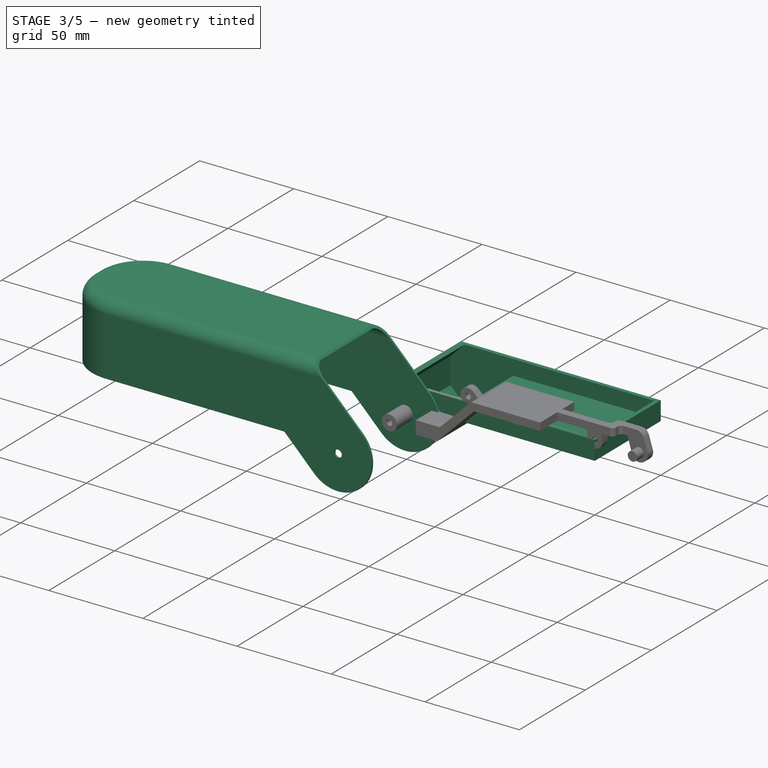
[diagram: stage 3 of 5 — iso view after this stage's code; geometry added in this stage tinted green]
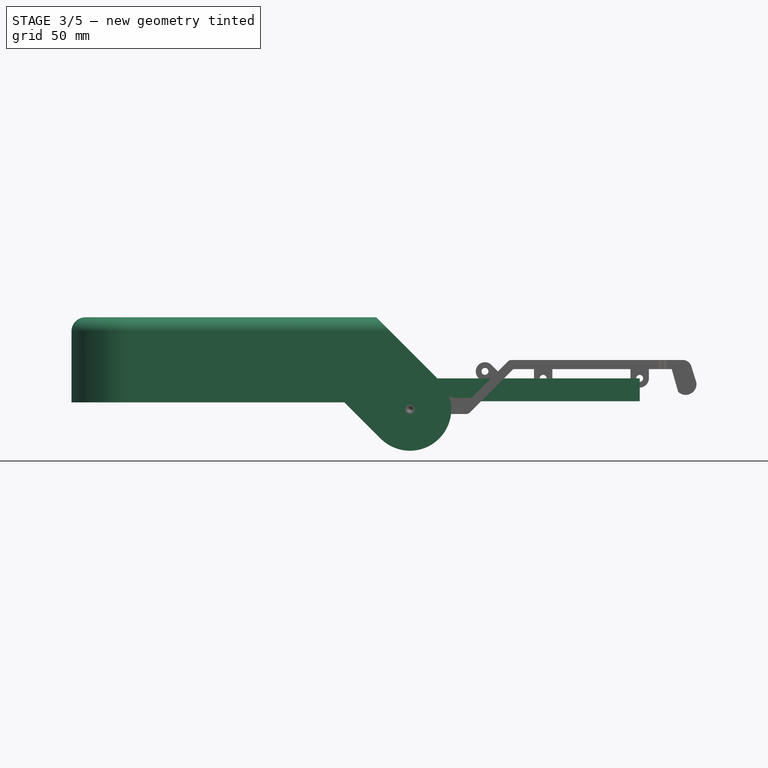
[diagram: stage 3 of 5 — front view after this stage's code; geometry added in this stage tinted green]
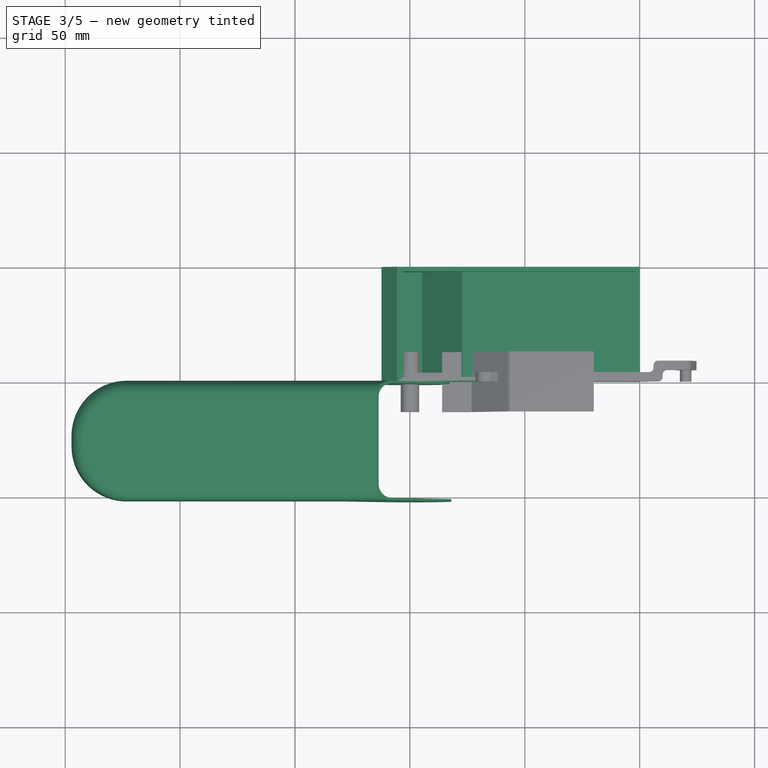
[diagram: stage 3 of 5 — top view after this stage's code; geometry added in this stage tinted green]
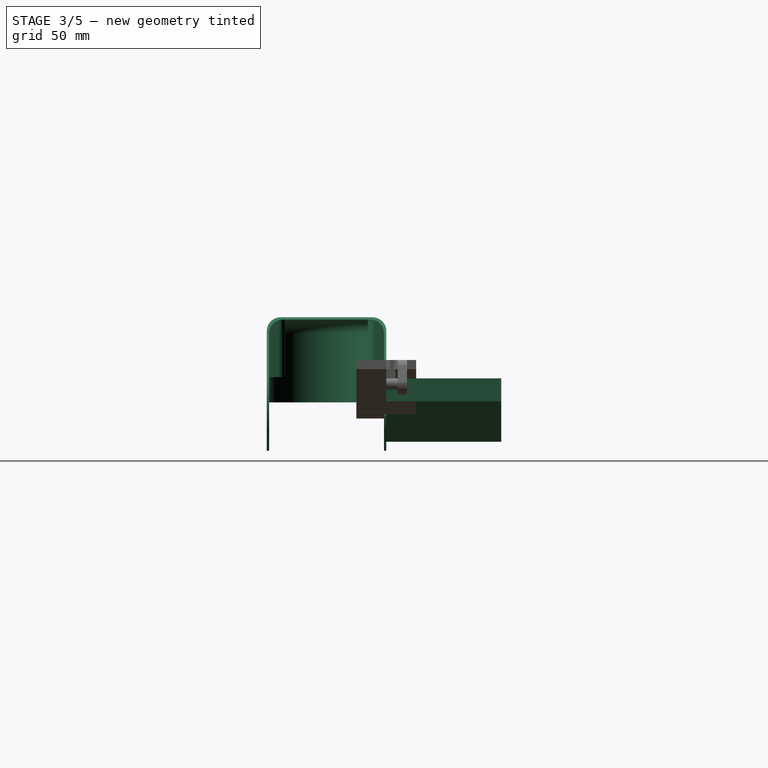
[diagram: stage 3 of 5 — right view after this stage's code; geometry added in this stage tinted green]
FEATURE [Sketcher::SketchObject] Sketch025
  ArcFitTolerance = 1e-06
  AttachmentSupport = -> [XZ_Plane003]
  FullyConstrained = false
  MakeInternals = false
  MapMode = 5
  Placement = pos=(0,0,0) rot=(1,0,0;1.5708rad)
  sketch-geometry (7):
    g0: ArcOfCircle CenterX=0 CenterY=0 CenterZ=0 NormalX=0 NormalY=0 NormalZ=1 AngleXU=0 Radius=18 StartAngle=3.92699 EndAngle=7.06858
    g1: LineSegment StartX=12.7279 StartY=12.7279 StartZ=0 EndX=-14.6058 EndY=40.0617 EndZ=0
    g2: LineSegment StartX=-14.6058 StartY=40.0617 StartZ=0 EndX=-147.232 EndY=40.0617 EndZ=0
    g3: LineSegment StartX=-12.7279 StartY=-12.7279 StartZ=0 EndX=-28.5175 EndY=3.06167 EndZ=0
    g4: LineSegment StartX=-147.232 StartY=40.0617 StartZ=0 EndX=-147.232 EndY=3.06167 EndZ=0
    g5: LineSegment StartX=-147.232 StartY=3.06167 StartZ=0 EndX=-28.5175 EndY=3.06167 EndZ=0
    g6: Circle CenterX=0 CenterY=0 CenterZ=0 NormalX=0 NormalY=0 NormalZ=1 AngleXU=0 Radius=2
  constraints (17):
    c: Angle(g0) = 3.14159
    c: Coincident(g0,g-1)
    c: Tangent(g1,g0) = -1.5708
    c: Coincident(g2,g1)
    c: Horizontal(g2)
    c: Angle(g-1,g3) = 2.35619
    c: Coincident(g3,g0)
    c: Vertical(g4)
    c: Coincident(g4,g2)
    c: Coincident(g5,g4)
    c: Coincident(g5,g3)
    c: Horizontal(g5)
    c: Angle(g1,g-1) = 0.785398
    c: Radius(g0) = 18
    c: DistanceY(g4,g4) = 37
    c: Diameter(g6) = 4
    c: Coincident(g6,g0)
FEATURE [App::Link] Link003  label="Spreadsheet"
  LinkedObject = -> <external Robot.FCStd>#Spreadsheet
FEATURE [App::Link] Link  label="ThirdArmBody"
  LinkPlacement = pos=(-31,46,24) rot=(0,0,-1.06004;0rad)
  LinkedObject = -> <external ThirdArm.FCStd>#LinkGroup
  Placement = pos=(-31,46,24) rot=(0,0,-1.06004;0rad)
FEATURE [PartDesign::Pad] Pad015
  Direction = (0,-1,2e-16)
  Length = 52
  Length2 = 10
  Placement = pos=(0,0,0) rot=(1,0,0;1.5708rad)
  Profile = -> Sketch025
  ReferenceAxis = -> Sketch025 [N_Axis]
  Refine = true
  Suppressed = false
  Type = 0
FEATURE [Sketcher::SketchObject] Sketch026
  ArcFitTolerance = 1e-06
  AttachmentOffset = pos=(0,0,24) rot=(0,0,1;0rad)
  AttachmentSupport = -> [Pad015]
  FullyConstrained = true
  MakeInternals = false
  MapMode = 5
  Placement = pos=(0,1.3e-15,-20.9383) rot=(1,0,0;3.14159rad)
  sketch-geometry (4):
    g0: ArcOfCircle CenterX=-121 CenterY=26 CenterZ=0 NormalX=0 NormalY=0 NormalZ=1 AngleXU=0 Radius=25 StartAngle=1.5708 EndAngle=4.71239
    g1: ArcOfCircle CenterX=79 CenterY=26 CenterZ=0 NormalX=0 NormalY=0 NormalZ=1 AngleXU=0 Radius=25 StartAngle=4.71239 EndAngle=7.85398
    g2: LineSegment StartX=-121 StartY=51 StartZ=0 EndX=79 EndY=51 EndZ=0
    g3: LineSegment StartX=-121 StartY=1 StartZ=0 EndX=79 EndY=1 EndZ=0
  constraints (10):
    c: Tangent(g0,g2) = 1.5708
    c: Tangent(g0,g3) = -1.5708
    c: Tangent(g1,g2) = 1.5708
    c: Tangent(g1,g3) = -1.5708
    c: Equal(g0,g1)
    c: Horizontal(g3)
    c: Distance(g0,g1) = 200
    c: Radius(g0) = 25
    c: DistanceX(g0,g-1) = 121
    c: Distance(g0,g-1) = 26
FEATURE [PartDesign::Pocket] Pocket009
  BaseFeature = -> Pad015
  Direction = (0,0,1)
  Length = 60
  Length2 = 5
  Placement = pos=(0,0,0) rot=(1,0,0;1.5708rad)
  Profile = -> Sketch026
  ReferenceAxis = -> Sketch026 [N_Axis]
  Refine = true
  Suppressed = false
  Type = 0
FEATURE [Sketcher::SketchObject] Sketch
  ArcFitTolerance = 1e-06
  AttachmentSupport = -> [XZ_Plane]
  FullyConstrained = false
  MakeInternals = false
  MapMode = 5
  Placement = pos=(0,0,0) rot=(1,0,0;1.5708rad)
  expr: Constraints[17] = <<Spreadsheet>>.ThirdArmLength
  sketch-geometry (8):
    g0: LineSegment StartX=23.728 StartY=3.5 StartZ=0 EndX=100 EndY=3.5 EndZ=0
    g1: LineSegment StartX=100 StartY=3.5 StartZ=0 EndX=100 EndY=13.5 EndZ=0
    g2: LineSegment StartX=100 StartY=13.5 StartZ=0 EndX=-5.63442 EndY=13.5 EndZ=0
    g3: LineSegment StartX=-5.63442 StartY=13.5 StartZ=0 EndX=-12.3353 EndY=6.79914 EndZ=0
    g4: LineSegment StartX=-12.3353 StartY=6.79914 StartZ=0 EndX=-12.3353 EndY=-8.76569 EndZ=0
    g5: LineSegment StartX=-12.3353 StartY=-8.76569 StartZ=0 EndX=-7.00513 EndY=-14.0958 EndZ=0
    g6: LineSegment StartX=-7.00513 StartY=-14.0958 StartZ=0 EndX=6.13216 EndY=-14.0958 EndZ=0
    g7: LineSegment StartX=23.728 StartY=3.5 StartZ=0 EndX=6.13216 EndY=-14.0958 EndZ=0
  constraints (19):
    c: Horizontal(g0)
    c: Coincident(g0,g1)
    c: Coincident(g1,g2)
    c: Horizontal(g2)
    c: Coincident(g2,g3)
    c: Coincident(g3,g4)
    c: Vertical(g4)
    c: Coincident(g4,g5)
    c: Coincident(g5,g6)
    c: Horizontal(g6)
    c: Coincident(g0,g7)
    c: Coincident(g7,g6)
    c: Angle(g3,g2) = 2.35619
    c: Angle(g5,g4) = 2.35619
    c: Angle(g7,g6) = 2.35619
    c: Vertical(g1)
    c: Distance(g-1,g0) = 3.5
    c: Distance(g-2,g1) = 100
    c: DistanceY(g1,g1) = 10
FEATURE [PartDesign::Pad] Pad
  Direction = (0,-1,2e-16)
  Length = 50
  Length2 = 10
  Placement = pos=(0,0,0) rot=(1,0,0;1.5708rad)
  Profile = -> Sketch
  ReferenceAxis = -> Sketch [N_Axis]
  Refine = true
  Reversed = true
  Suppressed = false
  Type = 0
  expr: Length = <<Spreadsheet>>.ThirdArmWidth
FEATURE [PartDesign::Thickness] Thickness
  Base = -> Pad [Face3]
  BaseFeature = -> Pad
  Intersection = false
  Join = 0
  Mode = 0
  Refine = true
  Reversed = true
  SupportTransform = false
  Suppressed = false
  Value = 2
FEATURE [PartDesign::Body] Body  label="ThirdArm"
  AllowCompound = false
  Group = -> [Sketch,Pad,Thickness,Sketch027,Pocket,Sketch028,Pocket010,Sketch029,Pad016,Pad017,Sketch030,Pocket011,Sketch031,Sketch032,Pocket012,Fillet004,Sketch039,Pocket013,Sketch040,Pad024,Sketch041,Pocket014,Sketch042,Pad025,Sketch043,Pocket015,Sketch044,Pocket016,Mirrored]
  Origin = -> Origin
  Tip = -> Mirrored
FEATURE [Sketcher::SketchObject] Sketch045
  ArcFitTolerance = 1e-06
  AttachmentSupport = -> [Pocket009]
  FullyConstrained = true
  MakeInternals = false
  MapMode = 5
  Placement = pos=(0,0,39.0617) rot=(1,0,0;3.14159rad)
  sketch-geometry (10):
    g0: Circle CenterX=-50 CenterY=5 CenterZ=0 NormalX=0 NormalY=0 NormalZ=1 AngleXU=0 Radius=2
    g1: Circle CenterX=-50 CenterY=47 CenterZ=0 NormalX=0 NormalY=0 NormalZ=1 AngleXU=0 Radius=2
    g2: LineSegment StartX=-47 StartY=1 StartZ=0 EndX=-47 EndY=5 EndZ=0
    g3: LineSegment StartX=-53 StartY=1 StartZ=0 EndX=-53 EndY=5 EndZ=0
    g4: ArcOfCircle CenterX=-50 CenterY=5 CenterZ=0 NormalX=0 NormalY=0 NormalZ=1 AngleXU=0 Radius=3 StartAngle=0 EndAngle=3.14159
    g5: LineSegment StartX=-47 StartY=1 StartZ=0 EndX=-53 EndY=1 EndZ=0
    g6: LineSegment StartX=-47 StartY=51 StartZ=0 EndX=-47 EndY=47 EndZ=0
    g7: LineSegment StartX=-47 StartY=51 StartZ=0 EndX=-53 EndY=51 EndZ=0
    g8: LineSegment StartX=-53 StartY=51 StartZ=0 EndX=-53 EndY=47 EndZ=0
    g9: ArcOfCircle CenterX=-50 CenterY=47 CenterZ=0 NormalX=0 NormalY=0 NormalZ=1 AngleXU=0 Radius=3 StartAngle=3.14159 EndAngle=6.28319
  constraints (30):
    c: Diameter(g0) = 4
    c: Diameter(g1) = 4
    c: DistanceY(g-4,g0) = 4
    c: Distance(g1,g-3) = 4
    c: DistanceX(g1,g-1) = 50
    c: DistanceX(g0,g-1) = 50
    c: Vertical(g2)
    c: PointOnObject(g2,g-4)
    c: Coincident(g4,g0)
    c: Coincident(g4,g2)
    c: Coincident(g4,g3)
    c: Vertical(g3)
    c: Radius(g4) = 3
    c: DistanceY(g3,g3) = 4
    c: Horizontal(g3,g2)
    c: DistanceY(g2,g2) = 4
    c: Coincident(g5,g2)
    c: Coincident(g5,g3)
    c: PointOnObject(g6,g-3)
    c: Vertical(g6)
    c: Coincident(g6,g7)
    c: PointOnObject(g7,g-3)
    c: Coincident(g7,g8)
    c: Vertical(g8)
    c: Coincident(g9,g1)
    c: Coincident(g9,g6)
    c: Coincident(g9,g8)
    c: DistanceY(g8,g8) = 4
    c: DistanceY(g6,g6) = 4
    c: Radius(g9) = 3
FEATURE [PartDesign::Pad] Pad026
  BaseFeature = -> Pocket009
  Direction = (0,0,-1)
  Length = 25
  Length2 = 10
  Placement = pos=(0,0,0) rot=(1,0,0;1.5708rad)
  Profile = -> Sketch045
  ReferenceAxis = -> Sketch045 [N_Axis]
  Refine = true
  Suppressed = false
  Type = 0
FEATURE [PartDesign::LinearPattern] LinearPattern
  BaseFeature = -> Pad026
  Direction = -> Sketch045 [H_Axis]
  Length = 25
  Mode = 1
  Occurrences = 2
  Offset = 25
  Originals = -> [Pad026]
  Placement = pos=(0,0,0) rot=(1,0,0;1.5708rad)
  Refine = true
  Reversed = true
  Suppressed = false
  TransformMode = 0
FEATURE [PartDesign::Fillet] Fillet005
  Base = -> LinearPattern [Edge7,Edge34]
  BaseFeature = -> LinearPattern
  Placement = pos=(0,0,0) rot=(1,0,0;1.5708rad)
  Radius = 24
  Refine = true
  SupportTransform = false
  Suppressed = false
  UseAllEdges = false
FEATURE [PartDesign::Fillet] Fillet006
  Base = -> Fillet005 [Edge1,Edge9,Edge8,Edge10,Edge11,Edge53,Edge50,Edge46,Edge42,Edge62,Edge58,Edge54]
  BaseFeature = -> Fillet005
  Placement = pos=(0,0,0) rot=(1,0,0;1.5708rad)
  Radius = 6
  Refine = true
  SupportTransform = false
  Suppressed = false
  UseAllEdges = false
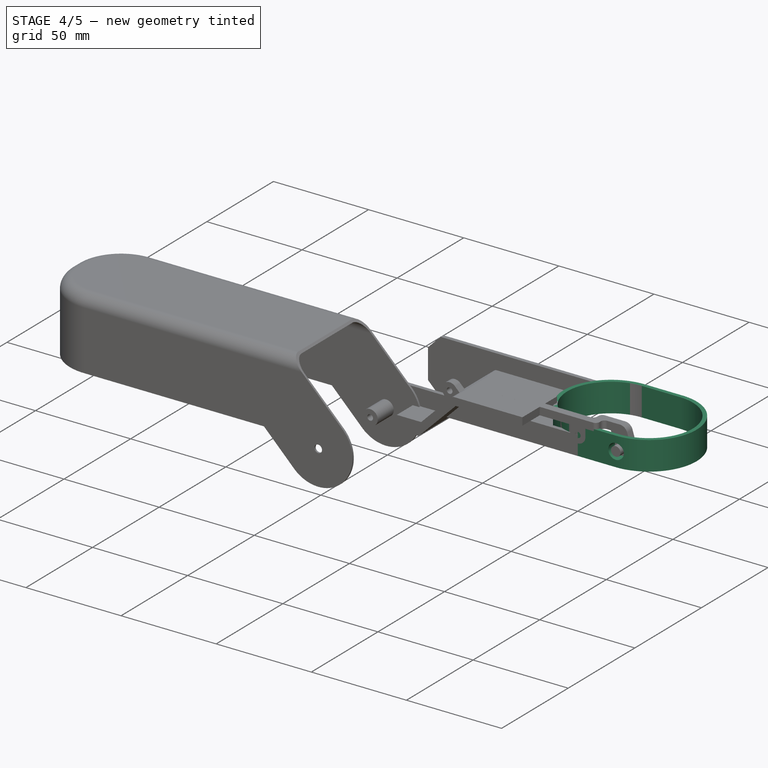
[diagram: stage 4 of 5 — iso view after this stage's code; geometry added in this stage tinted green]
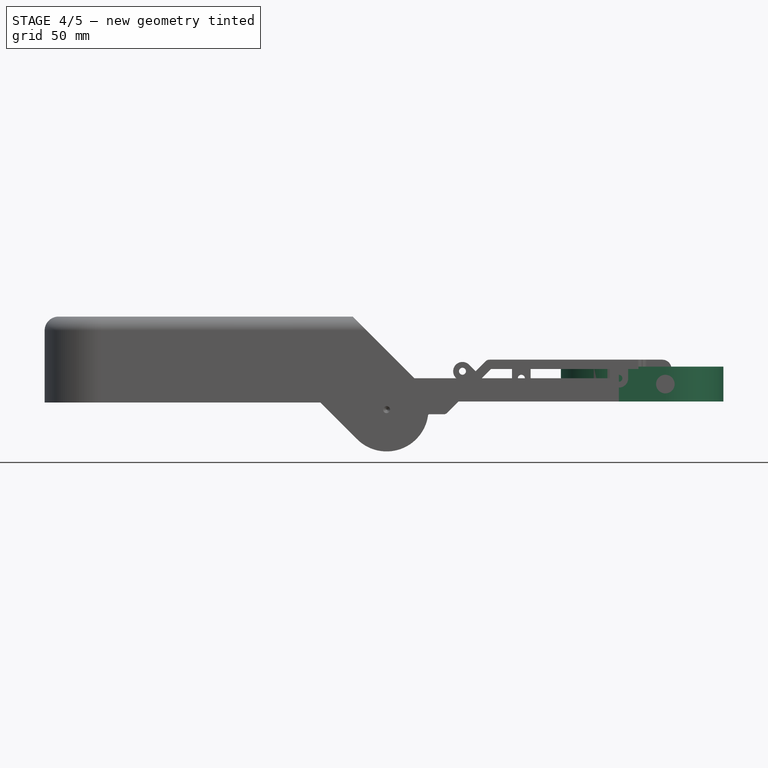
[diagram: stage 4 of 5 — front view after this stage's code; geometry added in this stage tinted green]
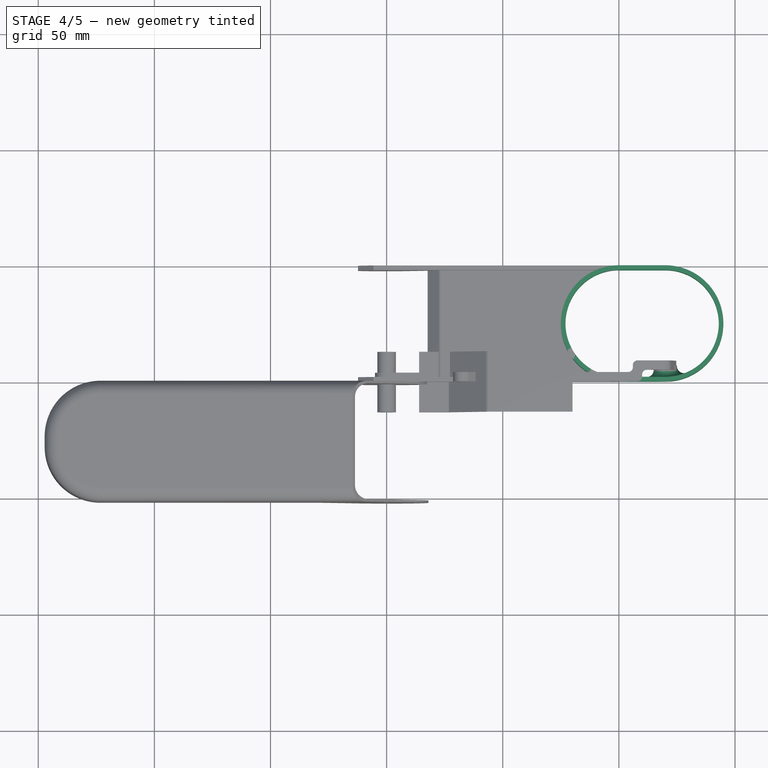
[diagram: stage 4 of 5 — top view after this stage's code; geometry added in this stage tinted green]
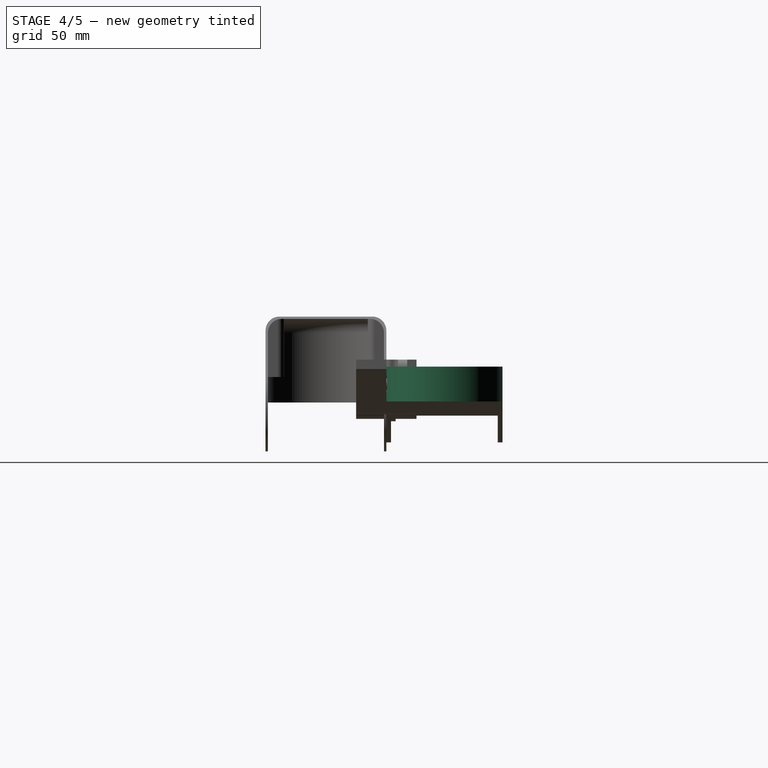
[diagram: stage 4 of 5 — right view after this stage's code; geometry added in this stage tinted green]
FEATURE [Sketcher::SketchObject] Sketch027
  ArcFitTolerance = 1e-06
  AttachmentSupport = -> [Thickness]
  ExternalGeometry = -> [Thickness]
  FullyConstrained = false
  MakeInternals = false
  MapMode = 5
  Placement = pos=(-12.3353,0,0) rot=(0.57735,-0.57735,-0.57735;2.0944rad)
  sketch-geometry (4):
    g0: LineSegment StartX=-2 StartY=-21.8433 StartZ=0 EndX=-2 EndY=36.0708 EndZ=0
    g1: LineSegment StartX=-2 StartY=36.0708 StartZ=0 EndX=-48 EndY=36.0708 EndZ=0
    g2: LineSegment StartX=-48 StartY=36.0708 StartZ=0 EndX=-48 EndY=-21.8433 EndZ=0
    g3: LineSegment StartX=-48 StartY=-21.8433 StartZ=0 EndX=-2 EndY=-21.8433 EndZ=0
  constraints (10):
    c: Coincident(g0,g1)
    c: Coincident(g1,g2)
    c: Coincident(g2,g3)
    c: Coincident(g3,g0)
    c: Vertical(g0)
    c: Vertical(g2)
    c: Horizontal(g1)
    c: Horizontal(g3)
    c: Distance(g-2,g0) = 2
    c: Distance(g-3,g2) = 2
FEATURE [PartDesign::Pocket] Pocket
  BaseFeature = -> Thickness
  Direction = (1,0,0)
  Length = 30
  Length2 = 5
  Profile = -> Sketch027
  ReferenceAxis = -> Sketch027 [N_Axis]
  Refine = true
  Suppressed = false
  Type = 0
FEATURE [App::Link] Link004  label="Gripper"
  LinkPlacement = pos=(120,25,-4.00001) rot=(0,0,1;3.14159rad)
  LinkedObject = -> <external GripperHolder.FCStd>#LinkGroup
  Placement = pos=(120,25,-4.00001) rot=(0,0,1;3.14159rad)
FEATURE [Sketcher::SketchObject] Sketch028
  ArcFitTolerance = 1e-06
  AttachmentSupport = -> [Thickness]
  ExternalGeometry = -> [Thickness]
  FullyConstrained = true
  MakeInternals = false
  MapMode = 5
  Placement = pos=(0,5.9e-15,13.5) rot=(0,0,1;0rad)
  sketch-geometry (4):
    g0: ArcOfCircle CenterX=100 CenterY=25 CenterZ=0 NormalX=0 NormalY=0 NormalZ=1 AngleXU=0 Radius=23 StartAngle=1.5708 EndAngle=4.71239
    g1: ArcOfCircle CenterX=120 CenterY=25 CenterZ=0 NormalX=0 NormalY=0 NormalZ=1 AngleXU=0 Radius=23 StartAngle=4.71239 EndAngle=7.85398
    g2: LineSegment StartX=100 StartY=48 StartZ=0 EndX=120 EndY=48 EndZ=0
    g3: LineSegment StartX=100 StartY=2 StartZ=0 EndX=120 EndY=2 EndZ=0
  constraints (10):
    c: Tangent(g0,g2) = 1.5708
    c: Tangent(g0,g3) = -1.5708
    c: Tangent(g1,g2) = 1.5708
    c: Tangent(g1,g3) = -1.5708
    c: Equal(g0,g1)
    c: Horizontal(g3)
    c: Distance(g0,g1) = 20
    c: Vertical(g0,g-3)
    c: DistanceY(g0,g-3) = 2
    c: DistanceY(g-3,g0) = 2
FEATURE [PartDesign::Pocket] Pocket010
  BaseFeature = -> Pocket
  Direction = (0,0,-1)
  Length = 5
  Length2 = 5
  Profile = -> Sketch028
  ReferenceAxis = -> Sketch028 [N_Axis]
  Refine = true
  Suppressed = false
  Type = 1
FEATURE [Sketcher::SketchObject] Sketch029
  ArcFitTolerance = 1e-06
  AttachmentOffset = pos=(0,0,-2) rot=(0,0,1;0rad)
  AttachmentSupport = -> [Pocket010]
  ExternalGeometry = -> [Sketch,Pocket010]
  FullyConstrained = false
  MakeInternals = false
  MapMode = 5
  Placement = pos=(0,2.4e-15,3.5) rot=(0,0,1;0rad)
  sketch-geometry (8):
    g0: ArcOfCircle CenterX=100 CenterY=25 CenterZ=0 NormalX=0 NormalY=0 NormalZ=1 AngleXU=0 Radius=23 StartAngle=1.5708 EndAngle=4.71239
    g1: ArcOfCircle CenterX=120 CenterY=25 CenterZ=0 NormalX=0 NormalY=0 NormalZ=1 AngleXU=0 Radius=23 StartAngle=4.71239 EndAngle=7.85398
    g2: LineSegment StartX=100 StartY=48 StartZ=0 EndX=120 EndY=48 EndZ=0
    g3: LineSegment StartX=100 StartY=2 StartZ=0 EndX=120 EndY=2 EndZ=0
    g4: ArcOfCircle CenterX=100 CenterY=25.0194 CenterZ=0 NormalX=0 NormalY=0 NormalZ=1 AngleXU=0 Radius=24.9806 StartAngle=1.5708 EndAngle=4.71239
    g5: ArcOfCircle CenterX=120 CenterY=25.0194 CenterZ=0 NormalX=0 NormalY=0 NormalZ=1 AngleXU=0 Radius=24.9806 StartAngle=4.71239 EndAngle=7.85398
    g6: LineSegment StartX=100 StartY=50 StartZ=0 EndX=120 EndY=50 EndZ=0
    g7: LineSegment StartX=100 StartY=0.038755 StartZ=0 EndX=120 EndY=0.038755 EndZ=0
  constraints (17):
    c: Tangent(g0,g2) = 1.5708
    c: Tangent(g0,g3) = -1.5708
    c: Tangent(g1,g2) = 1.5708
    c: Tangent(g1,g3) = -1.5708
    c: Equal(g0,g1)
    c: Horizontal(g3)
    c: Distance(g0,g1) = 20
    c: Vertical(g-3,g0)
    c: Distance(g-3,g0) = 2
    c: DistanceY(g-4,g0) = 2
    c: Tangent(g4,g6) = 1.5708
    c: Tangent(g4,g7) = -1.5708
    c: Tangent(g5,g6) = 1.5708
    c: Tangent(g5,g7) = -1.5708
    c: Equal(g4,g5)
    c: Horizontal(g7)
    c: Distance(g2,g6) = 2
FEATURE [PartDesign::Pad] Pad016
  BaseFeature = -> Pocket010
  Direction = (0,0,1)
  Length = 15
  Length2 = 10
  Profile = -> Sketch029
  ReferenceAxis = -> Sketch029 [N_Axis]
  Refine = true
  Suppressed = false
  Type = 0
FEATURE [Sketcher::SketchObject] Sketch030
  ArcFitTolerance = 1e-06
  AttachmentSupport = -> [Pad016]
  FullyConstrained = true
  MakeInternals = false
  MapMode = 5
  Placement = pos=(0,0.038755,0) rot=(1,0,0;1.5708rad)
  expr: Constraints[2] = <<Spreadsheet>>.ThirdArmLength + 20
  sketch-geometry (1):
    g0: Circle CenterX=120 CenterY=11 CenterZ=0 NormalX=0 NormalY=0 NormalZ=1 AngleXU=0 Radius=4
  constraints (3):
    c: Distance(g0,g-1) = 11
    c: Diameter(g0) = 8
    c: DistanceX(g-1,g0) = 120
FEATURE [Sketcher::SketchObject] Sketch031
  ArcFitTolerance = 1e-06
  AttachmentSupport = -> [Pad016]
  FullyConstrained = true
  MakeInternals = false
  MapMode = 5
  Placement = pos=(0,2,0) rot=(0,0.707107,0.707107;3.14159rad)
  expr: Constraints[2] = <<Spreadsheet>>.ThirdArmLength + 20
  sketch-geometry (1):
    g0: Circle CenterX=-120 CenterY=11 CenterZ=0 NormalX=0 NormalY=0 NormalZ=1 AngleXU=0 Radius=5
  constraints (3):
    c: Diameter(g0) = 10
    c: Distance(g0,g-1) = 11
    c: DistanceX(g0,g-1) = 120
FEATURE [PartDesign::Pad] Pad017
  BaseFeature = -> Pad016
  Direction = (0,1,-2e-16)
  Length = 5
  Length2 = 10
  Profile = -> Sketch031
  ReferenceAxis = -> Sketch031 [N_Axis]
  Refine = true
  Suppressed = false
  Type = 0
FEATURE [PartDesign::Pocket] Pocket011
  BaseFeature = -> Pad017
  Direction = (0,1,-2e-16)
  Length = 5
  Length2 = 5
  Profile = -> Sketch030
  ReferenceAxis = -> Sketch030 [N_Axis]
  Refine = true
  Suppressed = false
  Type = 0
FEATURE [Sketcher::SketchObject] Sketch032
  ArcFitTolerance = 1e-06
  AttachmentSupport = -> [Pocket011]
  FullyConstrained = true
  MakeInternals = false
  MapMode = 5
  Placement = pos=(0,7,-1.8e-15) rot=(0,0.707107,0.707107;3.14159rad)
  expr: Constraints[2] = <<Spreadsheet>>.ThirdArmLength + 20
  sketch-geometry (1):
    g0: Circle CenterX=-120 CenterY=11 CenterZ=0 NormalX=0 NormalY=0 NormalZ=1 AngleXU=0 Radius=3
  constraints (3):
    c: Diameter(g0) = 6
    c: DistanceY(g-1,g0) = 11
    c: DistanceX(g0,g-1) = 120
FEATURE [PartDesign::Pocket] Pocket012
  BaseFeature = -> Pocket011
  Direction = (0,-1,2e-16)
  Length = 5
  Length2 = 5
  Profile = -> Sketch032
  ReferenceAxis = -> Sketch032 [N_Axis]
  Refine = true
  Suppressed = false
  Type = 0
FEATURE [PartDesign::Fillet] Fillet004
  Base = -> Pocket012 [Edge62,Edge57]
  BaseFeature = -> Pocket012
  Radius = 3
  Refine = true
  SupportTransform = false
  Suppressed = false
  UseAllEdges = false
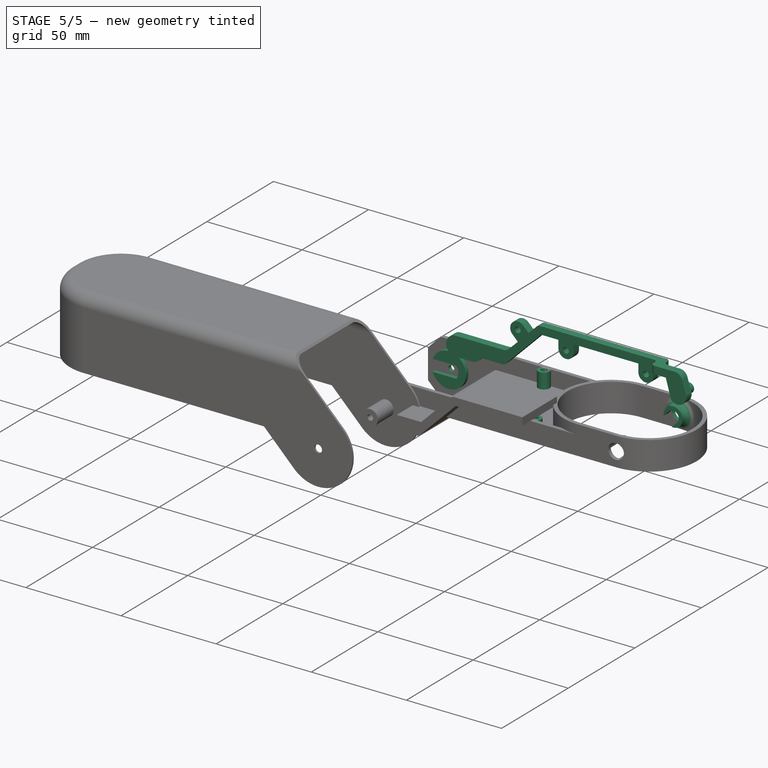
[diagram: stage 5 of 5 — iso view after this stage's code; geometry added in this stage tinted green]
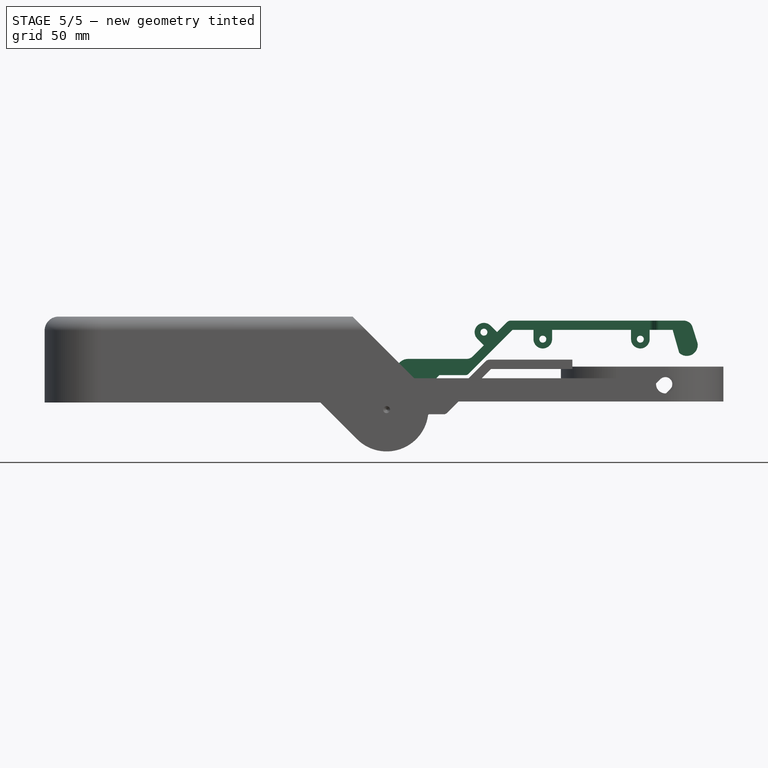
[diagram: stage 5 of 5 — front view after this stage's code; geometry added in this stage tinted green]
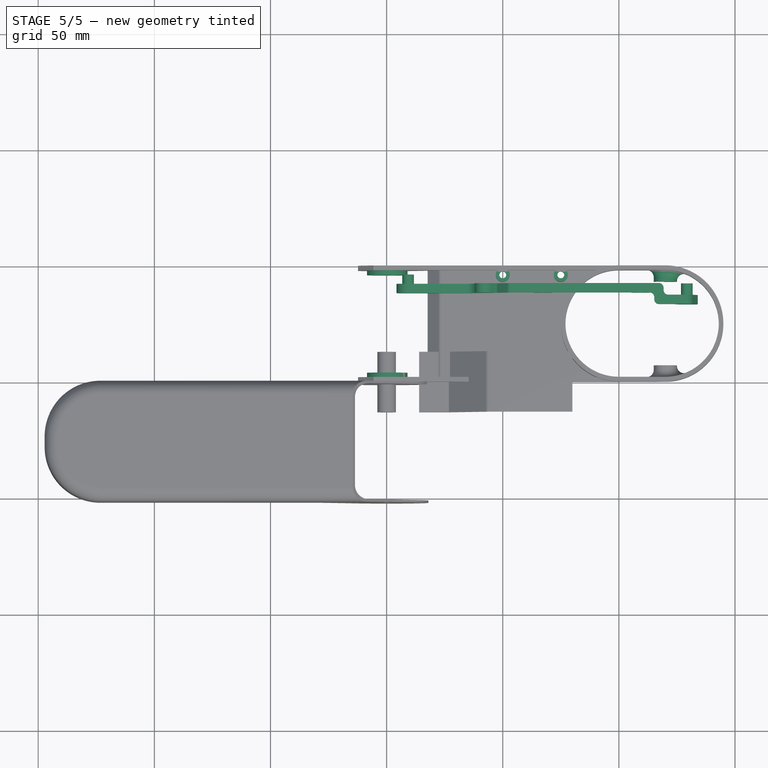
[diagram: stage 5 of 5 — top view after this stage's code; geometry added in this stage tinted green]
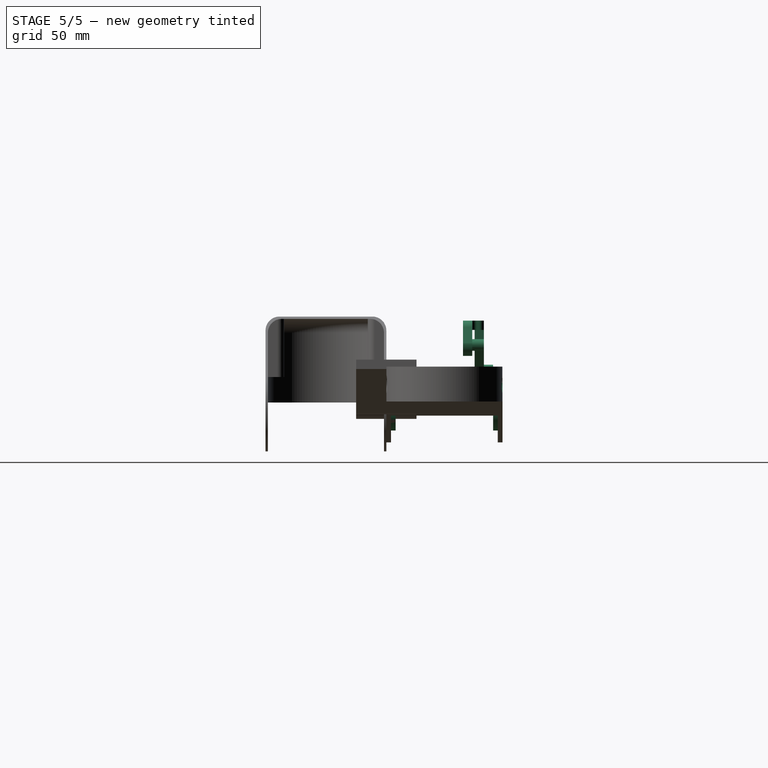
[diagram: stage 5 of 5 — right view after this stage's code; geometry added in this stage tinted green]
FEATURE [Sketcher::SketchObject] Sketch039
  ArcFitTolerance = 1e-06
  AttachmentSupport = -> [Fillet004]
  FullyConstrained = false
  MakeInternals = false
  MapMode = 5
  Placement = pos=(0,2,0) rot=(0,0.707107,0.707107;3.14159rad)
  sketch-geometry (4):
    g0: ArcOfCircle CenterX=-120 CenterY=11 CenterZ=0 NormalX=0 NormalY=0 NormalZ=1 AngleXU=0 Radius=3 StartAngle=0.785398 EndAngle=3.92699
    g1: ArcOfCircle CenterX=-113.653 CenterY=4.65255 CenterZ=0 NormalX=0 NormalY=0 NormalZ=1 AngleXU=0 Radius=3 StartAngle=3.92699 EndAngle=7.06858
    g2: LineSegment StartX=-117.879 StartY=13.1213 StartZ=0 EndX=-111.531 EndY=6.77387 EndZ=0
    g3: LineSegment StartX=-122.121 StartY=8.87868 StartZ=0 EndX=-115.774 EndY=2.53123 EndZ=0
  constraints (9):
    c: Tangent(g0,g2) = 1.5708
    c: Tangent(g0,g3) = -1.5708
    c: Tangent(g1,g2) = 1.5708
    c: Tangent(g1,g3) = -1.5708
    c: Equal(g0,g1)
    c: Radius(g0) = 3
    c: DistanceX(g0,g-1) = 120
    c: DistanceY(g-1,g0) = 11
    c: Angle(g3,g-1) = 0.785398
FEATURE [PartDesign::Pocket] Pocket013
  BaseFeature = -> Fillet004
  Direction = (0,-1,2e-16)
  Length = 5
  Length2 = 5
  Profile = -> Sketch039
  ReferenceAxis = -> Sketch039 [N_Axis]
  Refine = true
  Reversed = true
  Suppressed = false
  Type = 0
FEATURE [Sketcher::SketchObject] Sketch040
  ArcFitTolerance = 1e-06
  AttachmentSupport = -> [Pocket013]
  FullyConstrained = true
  MakeInternals = false
  MapMode = 5
  Placement = pos=(0,2,0) rot=(0,0.707107,0.707107;3.14159rad)
  sketch-geometry (5):
    g0: ArcOfCircle CenterX=0 CenterY=0 CenterZ=0 NormalX=0 NormalY=0 NormalZ=1 AngleXU=0 Radius=5.05 StartAngle=2.48065 EndAngle=3.80254
    g1: LineSegment StartX=-3.98654 StartY=-3.1 StartZ=0 EndX=8.44926 EndY=-3.1 EndZ=0
    g2: LineSegment StartX=8.44926 StartY=3.1 StartZ=0 EndX=-3.98654 EndY=3.1 EndZ=0
    g3: GeomPoint [constr] X=0 Y=0 Z=0
    g4: ArcOfCircle CenterX=0 CenterY=0 CenterZ=0 NormalX=0 NormalY=0 NormalZ=1 AngleXU=0 Radius=9 StartAngle=0.351647 EndAngle=5.93154
  constraints (13):
    c: Coincident(g0,g-1)
    c: Diameter(g0) = 10.1
    c: Horizontal(g1)
    c: Horizontal(g2)
    c: Coincident(g3,g0)
    c: Coincident(g4,g0)
    c: Diameter(g4) = 18
    c: Coincident(g2,g0)
    c: Coincident(g0,g1)
    c: Distance(g-1,g2) = 3.1
    c: Distance(g-1,g1) = 3.1
    c: Coincident(g2,g4)
    c: Coincident(g1,g4)
FEATURE [PartDesign::Pad] Pad024
  BaseFeature = -> Pocket013
  Direction = (0,1,-2e-16)
  Length = 2
  Length2 = 10
  Profile = -> Sketch040
  ReferenceAxis = -> Sketch040 [N_Axis]
  Refine = true
  Suppressed = false
  Type = 0
FEATURE [Sketcher::SketchObject] Sketch041
  ArcFitTolerance = 1e-06
  AttachmentSupport = -> [Pad024]
  FullyConstrained = true
  MakeInternals = false
  MapMode = 5
  Placement = pos=(0,2,0) rot=(0,0.707107,0.707107;3.14159rad)
  sketch-geometry (1):
    g0: Circle CenterX=0 CenterY=0 CenterZ=0 NormalX=0 NormalY=0 NormalZ=1 AngleXU=0 Radius=1.5
  constraints (2):
    c: Coincident(g0,g-1)
    c: Diameter(g0) = 3
FEATURE [PartDesign::Pocket] Pocket014
  BaseFeature = -> Pad024
  Direction = (0,-1,2e-16)
  Length = 5
  Length2 = 5
  Profile = -> Sketch041
  ReferenceAxis = -> Sketch041 [N_Axis]
  Refine = true
  Suppressed = false
  Type = 0
FEATURE [Sketcher::SketchObject] Sketch042
  ArcFitTolerance = 1e-06
  AttachmentSupport = -> [Pocket014]
  FullyConstrained = true
  MakeInternals = false
  MapMode = 5
  Placement = pos=(0,2.4e-15,5.5) rot=(0,0,1;0rad)
  sketch-geometry (2):
    g0: Circle CenterX=50 CenterY=4 CenterZ=0 NormalX=0 NormalY=0 NormalZ=1 AngleXU=0 Radius=3
    g1: Circle CenterX=75 CenterY=4 CenterZ=0 NormalX=0 NormalY=0 NormalZ=1 AngleXU=0 Radius=3
  constraints (6):
    c: Horizontal(g0,g1)
    c: Diameter(g0) = 6
    c: Diameter(g1) = 6
    c: Distance(g0,g-1) = 4
    c: DistanceX(g-1,g0) = 50
    c: DistanceX(g0,g1) = 25
FEATURE [PartDesign::Pad] Pad025
  BaseFeature = -> Pocket014
  Direction = (0,0,1)
  Length = 8
  Length2 = 10
  Profile = -> Sketch042
  ReferenceAxis = -> Sketch042 [N_Axis]
  Refine = true
  Suppressed = false
  Type = 0
FEATURE [Sketcher::SketchObject] Sketch043
  ArcFitTolerance = 1e-06
  AttachmentSupport = -> [Pad025]
  FullyConstrained = true
  MakeInternals = false
  MapMode = 5
  Placement = pos=(0,0,13.5) rot=(0,0,1;0rad)
  sketch-geometry (2):
    g0: Circle CenterX=50 CenterY=4 CenterZ=0 NormalX=0 NormalY=0 NormalZ=1 AngleXU=0 Radius=1.5
    g1: Circle CenterX=75 CenterY=4 CenterZ=0 NormalX=0 NormalY=0 NormalZ=1 AngleXU=0 Radius=1.5
  constraints (6):
    c: Diameter(g0) = 3
    c: Diameter(g1) = 3
    c: Horizontal(g0,g1)
    c: DistanceX(g-1,g0) = 50
    c: DistanceY(g-1,g0) = 4
    c: DistanceX(g0,g1) = 25
FEATURE [PartDesign::Pocket] Pocket015
  BaseFeature = -> Pad025
  Direction = (0,0,-1)
  Length = 5
  Length2 = 5
  Profile = -> Sketch043
  ReferenceAxis = -> Sketch043 [N_Axis]
  Refine = true
  Suppressed = false
  Type = 1
FEATURE [Sketcher::SketchObject] Sketch044
  ArcFitTolerance = 1e-06
  AttachmentSupport = -> [Pocket015]
  FullyConstrained = false
  MakeInternals = false
  MapMode = 5
  Placement = pos=(0,0,18.5) rot=(0,0,1;0rad)
  sketch-geometry (4):
    g0: LineSegment StartX=158.319 StartY=25 StartZ=0 EndX=158.319 EndY=123.408 EndZ=0
    g1: LineSegment StartX=158.319 StartY=123.408 StartZ=0 EndX=-117.641 EndY=123.408 EndZ=0
    g2: LineSegment StartX=-117.641 StartY=123.408 StartZ=0 EndX=-117.641 EndY=25 EndZ=0
    g3: LineSegment StartX=-117.641 StartY=25 StartZ=0 EndX=158.319 EndY=25 EndZ=0
  constraints (9):
    c: Coincident(g0,g1)
    c: Coincident(g1,g2)
    c: Coincident(g2,g3)
    c: Coincident(g3,g0)
    c: Vertical(g0)
    c: Vertical(g2)
    c: Horizontal(g1)
    c: Horizontal(g3)
    c: Distance(g-1,g3) = 25
FEATURE [PartDesign::Pocket] Pocket016
  BaseFeature = -> Pocket015
  Direction = (0,0,-1)
  Length = 5
  Length2 = 5
  Profile = -> Sketch044
  ReferenceAxis = -> Sketch044 [N_Axis]
  Refine = true
  Suppressed = false
  Type = 1
FEATURE [PartDesign::Mirrored] Mirrored
  BaseFeature = -> Pocket016
  MirrorPlane = -> Pocket016 [Face6]
  Refine = true
  Suppressed = false
  TransformMode = 1
FEATURE [PartDesign::Body] Body004  label="DragShaftR"
  AllowCompound = false
  Group = -> [Sketch033,Pad018,Sketch034,Pad019,Sketch035,Pad020,Sketch036,Pad021,Sketch037,Pad022,Sketch038,Pad023,Fillet,Fillet001,Fillet002,Fillet003,Sketch049,Pad028]
  Origin = -> Origin004
  Placement = pos=(0,8,13) rot=(0,0,1;0rad)
  Tip = -> Pad028
FEATURE [Part::Mirroring] Part__Mirroring  label="DragShaftR (Mirror #1)"
  Base = (0,0,0)
  Normal = (0,1,0)
  Placement = pos=(9.23688,50,3.82837) rot=(0,0,1;0rad)
  Source = -> Body004
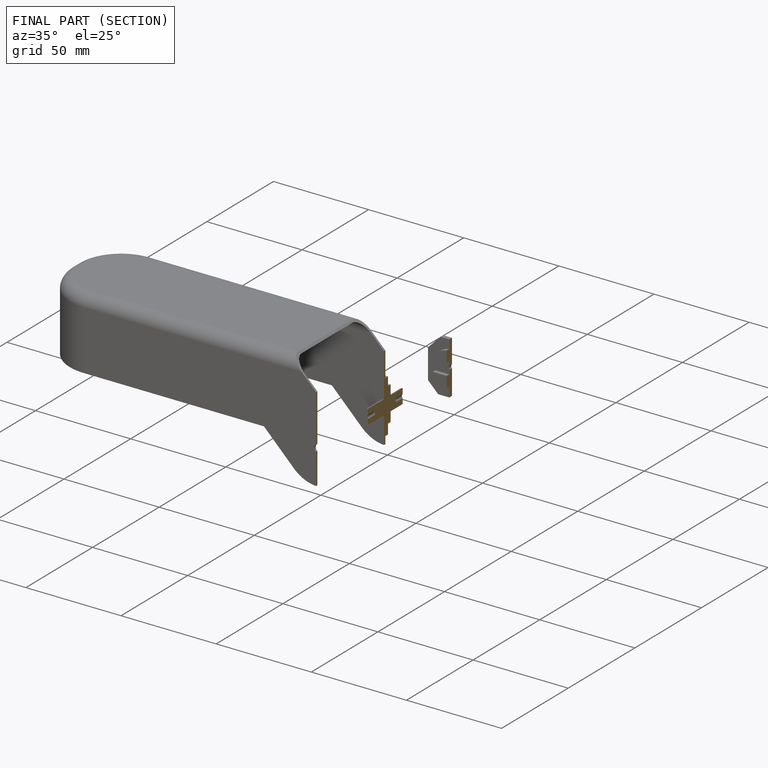
[diagram: finished part — half-section view (interior)]
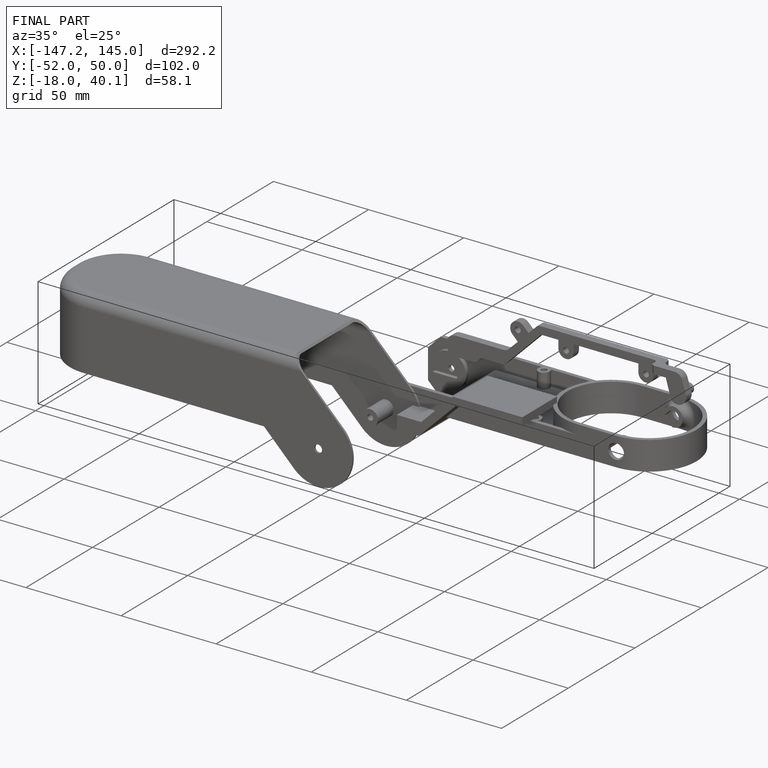
[diagram: finished part — iso view with bounding-box wireframe]
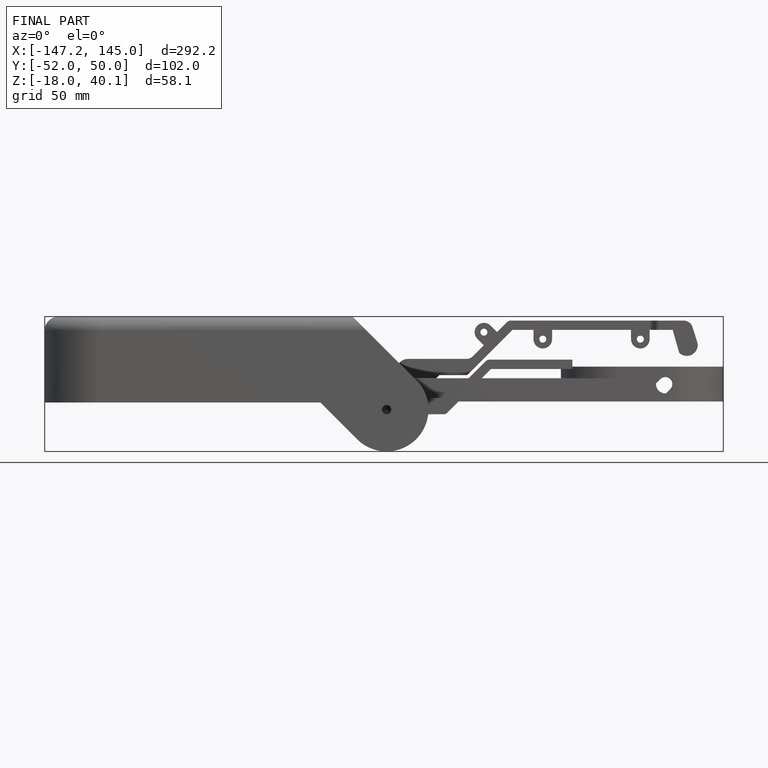
[diagram: finished part — front view with bounding-box wireframe]
